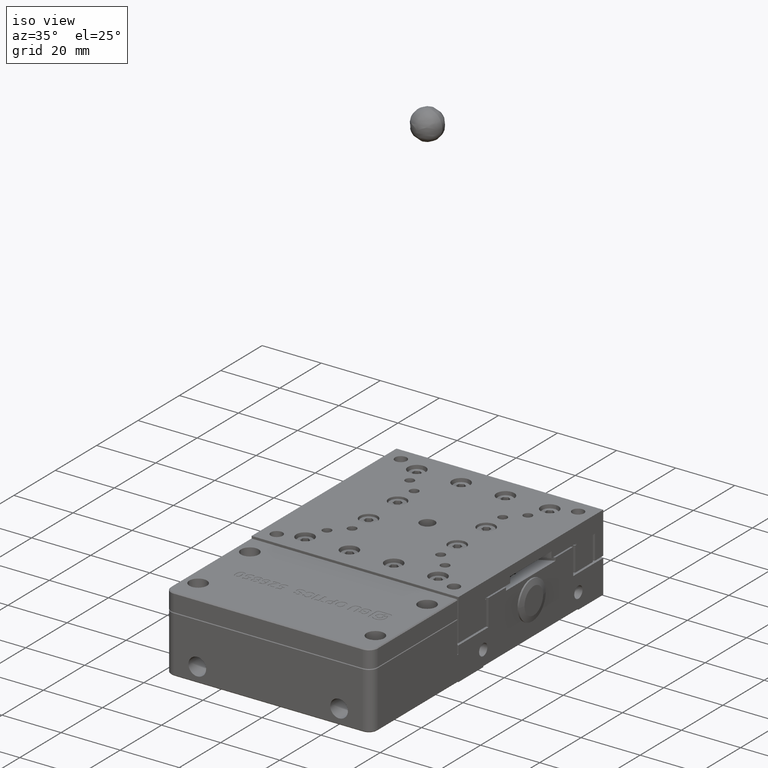
[diagram: clean part render]
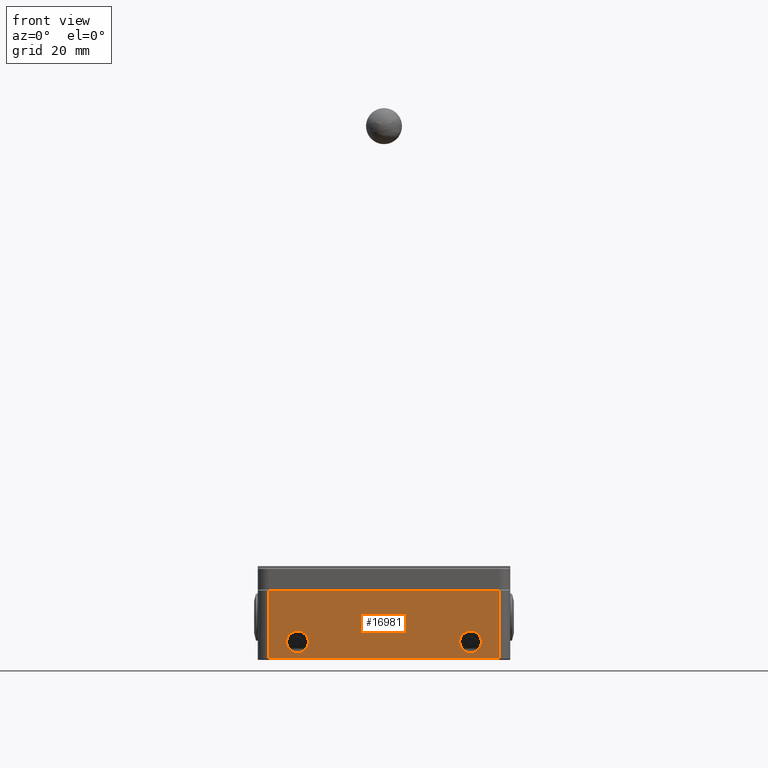
[diagram: tour spotlight — one face highlighted and labeled with its STEP entity id]
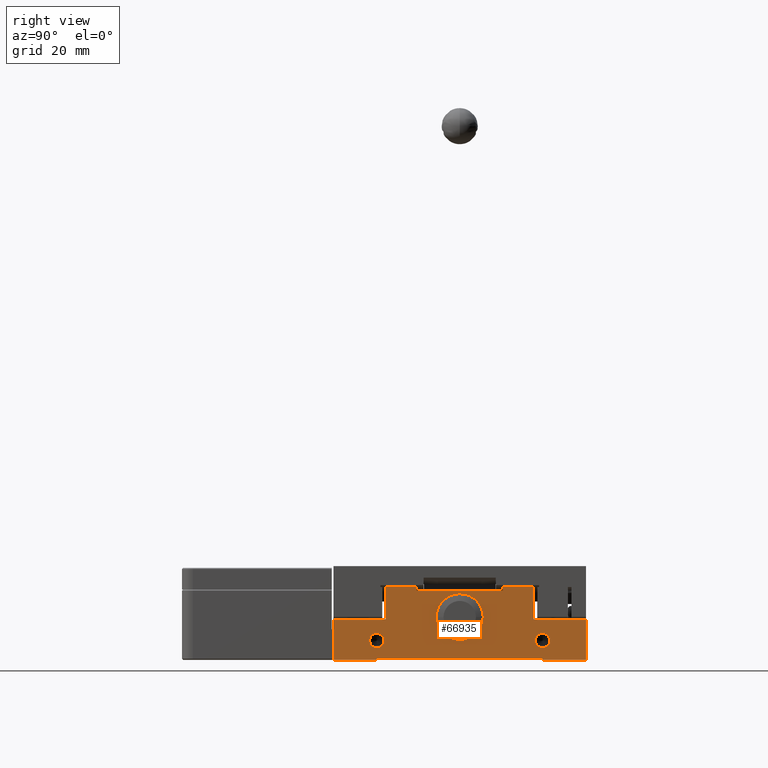
[diagram: tour spotlight — one face highlighted and labeled with its STEP entity id]
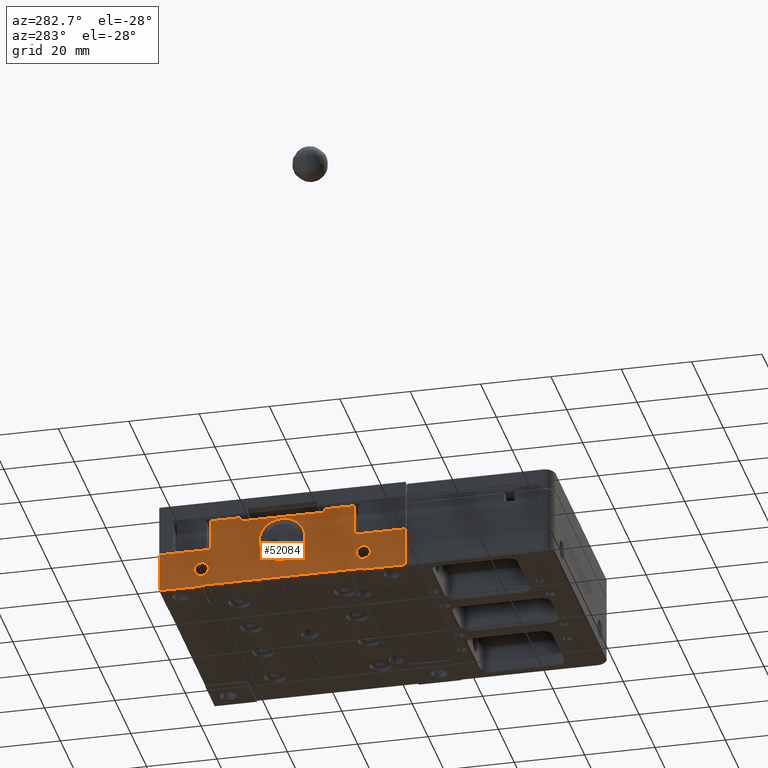
[diagram: tour spotlight — one face highlighted and labeled with its STEP entity id]
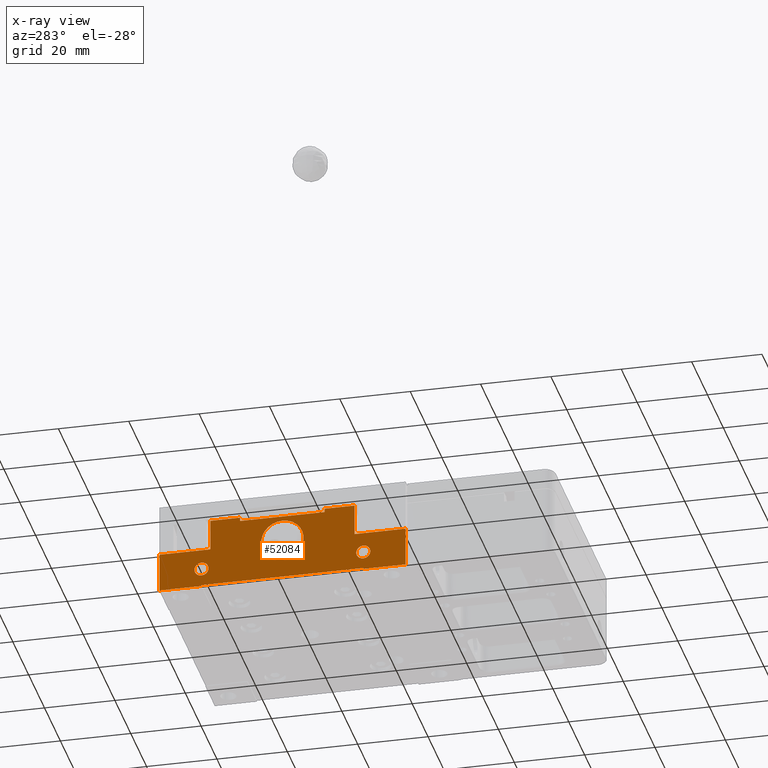
[diagram: x-ray of the same camera — body ghosted, this tour face saturated]
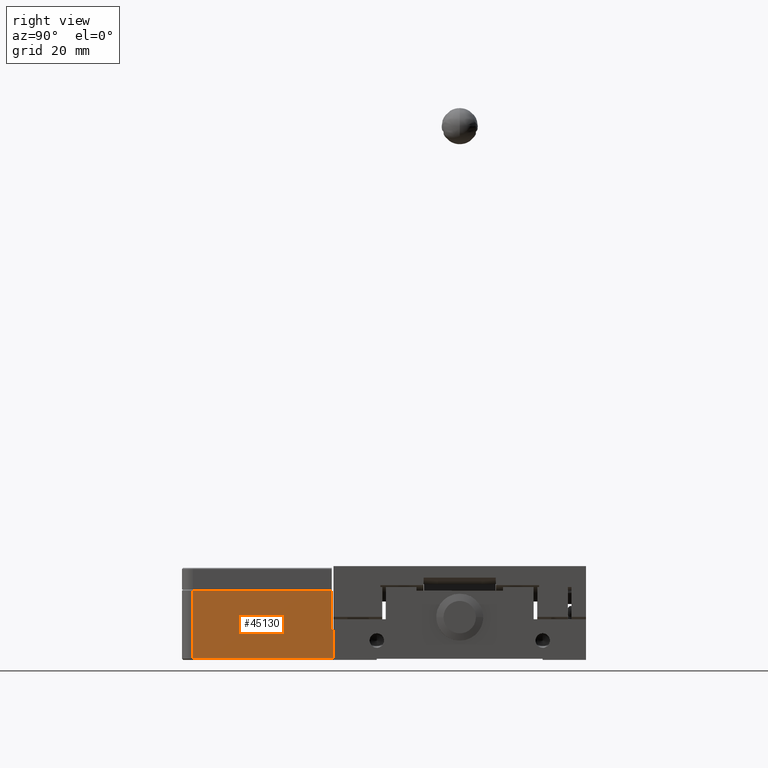
[diagram: tour spotlight — one face highlighted and labeled with its STEP entity id]
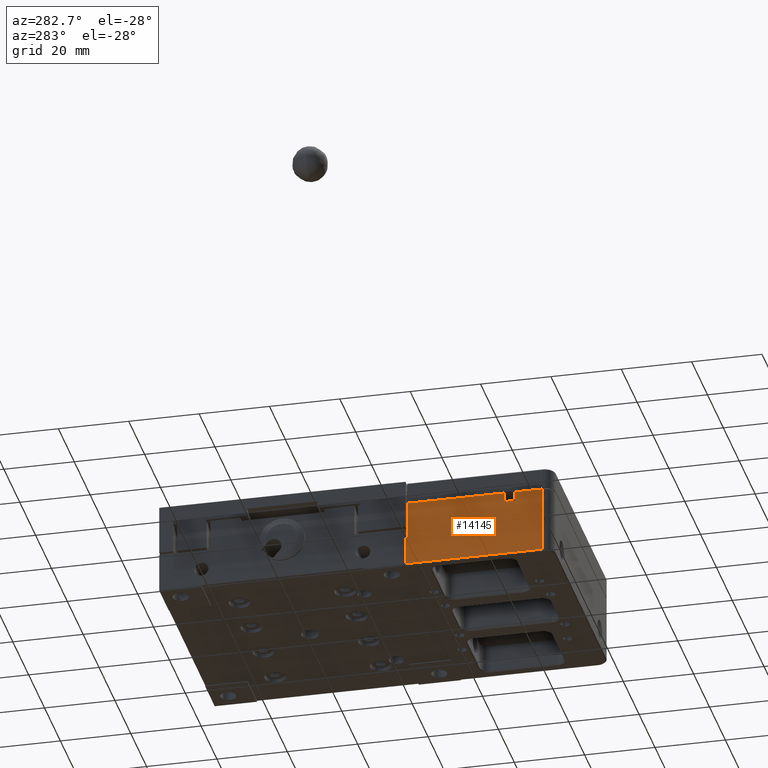
[diagram: tour spotlight — one face highlighted and labeled with its STEP entity id]
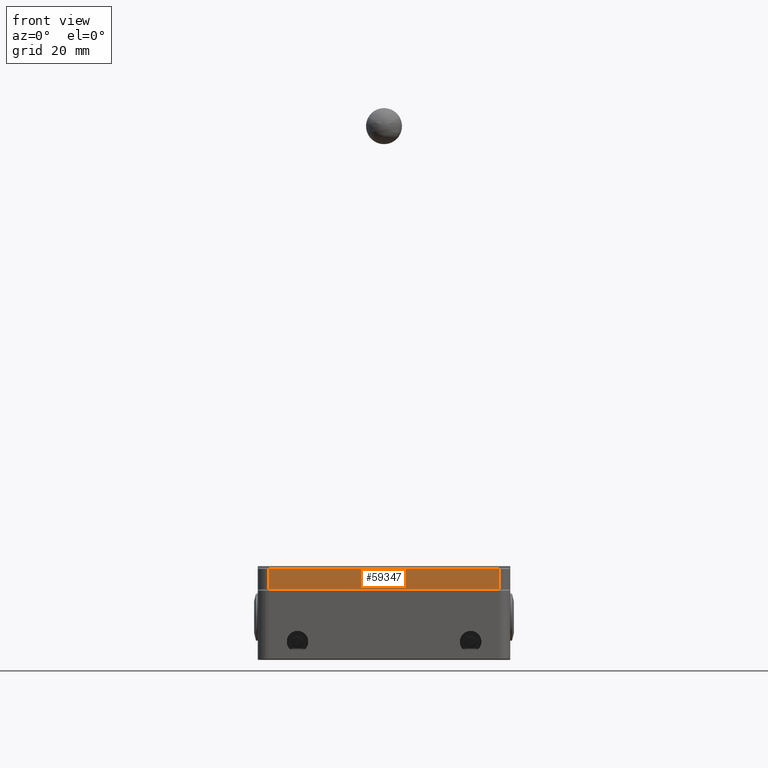
[diagram: tour spotlight — one face highlighted and labeled with its STEP entity id]
A machine part: a face-by-face anatomy tour. The part has 1740 B-rep faces; the first image is the clean iso view, then the 6 largest visible faces are spotlighted one at a time (largest first), each with its STEP entity span.

Face 1 — front view, entity #16981. In plain terms, the highlighted planar face has unit normal (0, -1, 0).
Definition (entity closure, byte-faithful):
#1458 = ORIENTED_EDGE ( 'NONE', *, *, #72483, .F. ) ;
#1739 = CARTESIAN_POINT ( 'NONE',  ( 24.78524365307783800, -76.99999999999998600, 7.921918030004945000 ) ) ;
#1905 = B_SPLINE_CURVE_WITH_KNOTS ( 'NONE', 3,
 ( #27427, #20845, #33993, #79692 ),
 .UNSPECIFIED., .F., .F.,
 ( 4, 4 ),
 ( 0.0000000000000000000, 1.000000000000000000 ),
 .UNSPECIFIED. ) ;
#2990 = ORIENTED_EDGE ( 'NONE', *, *, #52719, .F. ) ;
#3249 = B_SPLINE_CURVE_WITH_KNOTS ( 'NONE', 3,
 ( #37350, #76735, #18465, #64153, #25025, #70730, #31620, #77292, #38180, #83840, #44765, #5556, #51293, #12145, #57870, #18729, #64425, #25308 ),
 .UNSPECIFIED., .F., .F.,
 ( 4, 2, 2, 2, 2, 2, 2, 2, 4 ),
 ( 0.0000000000000000000, 0.1250000000000000600, 0.2500000000000000000, 0.3749999999999999400, 0.4999999999999998900, 0.6249999999999997800, 0.7499999999999998900, 0.8749999999999998900, 1.000000000000000000 ),
 .UNSPECIFIED. ) ;
#3871 = CARTESIAN_POINT ( 'NONE',  ( 21.37864083493722600, -76.99999999999997200, 6.510856941112697500 ) ) ;
#5298 = FACE_BOUND ( 'NONE', #11533, .T. ) ;
#5556 = CARTESIAN_POINT ( 'NONE',  ( -26.62135916506277400, -77.00000000000000000, 3.489143058887301100 ) ) ;
#5594 = CARTESIAN_POINT ( 'NONE',  ( -23.60730091830128100, -77.00000000000002800, 2.000000000000000400 ) ) ;
#5873 = CARTESIAN_POINT ( 'NONE',  ( -22.48914305888729700, -77.00000000000000000, 7.621359165062774100 ) ) ;
#6251 = EDGE_CURVE ( 'NONE', #72823, #79894, #1905, .T. ) ;
#8034 = CARTESIAN_POINT ( 'NONE',  ( 25.84364015992474600, -77.00000000000000000, 2.600999472805459500 ) ) ;
#8307 = CARTESIAN_POINT ( 'NONE',  ( 24.00000000000000000, -76.99999999999998600, 8.000000000000000000 ) ) ;
#10428 = CARTESIAN_POINT ( 'NONE',  ( 20.99999999999999600, -77.00000000000001400, 5.392699081698725500 ) ) ;
#11533 = EDGE_LOOP ( 'NONE', ( #48651, #1458 ) ) ;
#12103 = LINE ( 'NONE', #34346, #79632 ) ;
#12145 = CARTESIAN_POINT ( 'NONE',  ( -25.84364015992475300, -77.00000000000001400, 2.600999472805460400 ) ) ;
#12177 = CARTESIAN_POINT ( 'NONE',  ( -22.48914305888730400, -77.00000000000001400, 2.378640834937225400 ) ) ;
#12337 = CARTESIAN_POINT ( 'NONE',  ( -33.28000000000000100, -77.00000000000000000, -0.07799999999980000700 ) ) ;
#12460 = CARTESIAN_POINT ( 'NONE',  ( -23.60730091830127700, -77.00000000000000000, 8.000000000000001800 ) ) ;
#14393 = CARTESIAN_POINT ( 'NONE',  ( 24.00000000000000000, -77.00000000000000000, 2.000000000000000000 ) ) ;
#14633 = CARTESIAN_POINT ( 'NONE',  ( 26.62135916506277800, -77.00000000000000000, 3.489143058887302000 ) ) ;
#16753 = CARTESIAN_POINT ( 'NONE',  ( 23.60730091830128100, -77.00000000000002800, 8.000000000000001800 ) ) ;
#16981 = ADVANCED_FACE ( 'NONE', ( #22738, #5298, #40132 ), #64365, .T. ) ;
#17047 = CARTESIAN_POINT ( 'NONE',  ( 21.07808196999505800, -77.00000000000000000, 4.214756346922158900 ) ) ;
#17372 = CARTESIAN_POINT ( 'NONE',  ( 10.66666665046333400, -77.00000000000000000, 0.2999999981578302900 ) ) ;
#17606 = CARTESIAN_POINT ( 'NONE',  ( -31.99999996872603000, -77.00002426975460400, 0.2999912254139910900 ) ) ;
#18389 = ORIENTED_EDGE ( 'NONE', *, *, #18434, .T. ) ;
#18434 = EDGE_CURVE ( 'NONE', #52781, #42672, #84025, .T. ) ;
#18465 = CARTESIAN_POINT ( 'NONE',  ( -24.78524365307783100, -77.00000000000000000, 7.921918030004948500 ) ) ;
#18729 = CARTESIAN_POINT ( 'NONE',  ( -24.78524365307784200, -77.00000000000001400, 2.078081969995053700 ) ) ;
#18768 = CARTESIAN_POINT ( 'NONE',  ( -21.60099947280546900, -77.00000000000001400, 3.156359840075256600 ) ) ;
#18942 = DIRECTION ( 'NONE',  ( 1.000000000000000000, 0.0000000000000000000, 0.0000000000000000000 ) ) ;
#20845 = CARTESIAN_POINT ( 'NONE',  ( -10.66666663628166800, -76.99999433331500100, 19.20000566668499100 ) ) ;
#21240 = CARTESIAN_POINT ( 'NONE',  ( 27.00000000000000000, -77.00000000000000000, 4.607300918301276300 ) ) ;
#22738 = FACE_BOUND ( 'NONE', #30041, .T. ) ;
#23625 = CARTESIAN_POINT ( 'NONE',  ( 21.60099947280545500, -76.99999999999998600, 3.156359840075256200 ) ) ;
#23687 = CARTESIAN_POINT ( 'NONE',  ( -31.99999996872603000, -77.00002426975460400, 0.2999912254139910900 ) ) ;
#25025 = CARTESIAN_POINT ( 'NONE',  ( -25.84364015992473900, -76.99999999999997200, 7.399000527194538700 ) ) ;
#25308 = CARTESIAN_POINT ( 'NONE',  ( -24.00000000000000000, -77.00000000000000000, 2.000000000000000000 ) ) ;
#25337 = CARTESIAN_POINT ( 'NONE',  ( -21.07808196999506100, -77.00000000000001400, 4.214756346922162500 ) ) ;
#25409 = EDGE_CURVE ( 'NONE', #83850, #31820, #83984, .T. ) ;
#25439 = B_SPLINE_CURVE_WITH_KNOTS ( 'NONE', 3,
 ( #51341, #5594, #83617, #12177, #57913, #18768, #64469, #25337, #71050, #31934, #77608, #38504, #84161, #45061, #5873, #51607, #12460, #58186 ),
 .UNSPECIFIED., .F., .F.,
 ( 4, 2, 2, 2, 2, 2, 2, 2, 4 ),
 ( 0.0000000000000000000, 0.1249999999999998900, 0.2499999999999997800, 0.3749999999999996700, 0.4999999999999995600, 0.6249999999999996700, 0.7499999999999997800, 0.8749999999999998900, 1.000000000000000000 ),
 .UNSPECIFIED. ) ;
#26190 = EDGE_CURVE ( 'NONE', #70717, #69157, #25439, .T. ) ;
#27427 = CARTESIAN_POINT ( 'NONE',  ( -31.99999996856973900, -77.00002426978812800, 19.20000877454923900 ) ) ;
#27800 = CARTESIAN_POINT ( 'NONE',  ( 26.92191803000494600, -76.99999999999998600, 5.785243653077840200 ) ) ;
#30041 = EDGE_LOOP ( 'NONE', ( #40599, #2990 ) ) ;
#30202 = CARTESIAN_POINT ( 'NONE',  ( 22.48914305888730100, -77.00000000000000000, 2.378640834937228100 ) ) ;
#31168 = CARTESIAN_POINT ( 'NONE',  ( -32.00000000000000000, -77.00000000000000000, 9.749999999997724500 ) ) ;
#31620 = CARTESIAN_POINT ( 'NONE',  ( -26.62135916506277100, -76.99999999999997200, 6.510856941112697500 ) ) ;
#31820 = VERTEX_POINT ( 'NONE', #39242 ) ;
#31934 = CARTESIAN_POINT ( 'NONE',  ( -20.99999999999999300, -77.00000000000000000, 5.392699081698723700 ) ) ;
#32293 = EDGE_CURVE ( 'NONE', #72823, #52781, #56104, .T. ) ;
#33993 = CARTESIAN_POINT ( 'NONE',  ( 10.66666666666666800, -76.99999433331500100, 19.20000566668499100 ) ) ;
#34090 = CARTESIAN_POINT ( 'NONE',  ( 24.78524365307784200, -77.00000000000000000, 2.078081969995053200 ) ) ;
#34346 = CARTESIAN_POINT ( 'NONE',  ( 32.00000000000000000, -77.00000000000000000, 9.749999999997724500 ) ) ;
#34369 = CARTESIAN_POINT ( 'NONE',  ( 26.39900052719454100, -77.00000000000000000, 6.843640159924746100 ) ) ;
#36498 = CARTESIAN_POINT ( 'NONE',  ( 22.48914305888730100, -77.00000000000000000, 7.621359165062773200 ) ) ;
#36781 = CARTESIAN_POINT ( 'NONE',  ( 23.60730091830128100, -77.00000000000000000, 2.000000000000000000 ) ) ;
#37350 = CARTESIAN_POINT ( 'NONE',  ( -24.00000000000000000, -76.99999999999998600, 8.000000000000000000 ) ) ;
#38180 = CARTESIAN_POINT ( 'NONE',  ( -27.00000000000000400, -77.00000000000001400, 5.392699081698725500 ) ) ;
#38504 = CARTESIAN_POINT ( 'NONE',  ( -21.37864083493722600, -76.99999999999998600, 6.510856941112697500 ) ) ;
#38735 = VECTOR ( 'NONE', #70241, 1000.000000000000000 ) ;
#39242 = CARTESIAN_POINT ( 'NONE',  ( 24.00000000000000000, -76.99999999999998600, 8.000000000000000000 ) ) ;
#40132 = FACE_OUTER_BOUND ( 'NONE', #51033, .T. ) ;
#40599 = ORIENTED_EDGE ( 'NONE', *, *, #25409, .F. ) ;
#40685 = CARTESIAN_POINT ( 'NONE',  ( 24.00000000000000000, -77.00000000000000000, 2.000000000000000000 ) ) ;
#40941 = CARTESIAN_POINT ( 'NONE',  ( 25.51085694111270600, -77.00000000000000000, 7.621359165062774100 ) ) ;
#41424 = EDGE_CURVE ( 'NONE', #42672, #79894, #12103, .T. ) ;
#42672 = VERTEX_POINT ( 'NONE', #82902 ) ;
#42821 = ORIENTED_EDGE ( 'NONE', *, *, #32293, .T. ) ;
#43035 = CARTESIAN_POINT ( 'NONE',  ( 21.60099947280545900, -76.99999999999998600, 6.843640159924743400 ) ) ;
#44765 = CARTESIAN_POINT ( 'NONE',  ( -26.92191803000494600, -77.00000000000000000, 4.214756346922158900 ) ) ;
#45061 = CARTESIAN_POINT ( 'NONE',  ( -22.15635984007526100, -76.99999999999998600, 7.399000527194538700 ) ) ;
#47215 = CARTESIAN_POINT ( 'NONE',  ( 25.51085694111270300, -77.00000000000001400, 2.378640834937225400 ) ) ;
#47488 = CARTESIAN_POINT ( 'NONE',  ( 24.39269908169872300, -77.00000000000000000, 8.000000000000001800 ) ) ;
#48651 = ORIENTED_EDGE ( 'NONE', *, *, #26190, .F. ) ;
#49574 = CARTESIAN_POINT ( 'NONE',  ( 21.07808196999505100, -77.00000000000000000, 5.785243653077841900 ) ) ;
#50653 = CARTESIAN_POINT ( 'NONE',  ( -31.99999996856973900, -77.00002426978812800, 19.20000877454923900 ) ) ;
#51033 = EDGE_LOOP ( 'NONE', ( #18389, #58800, #52197, #42821 ) ) ;
#51089 = AXIS2_PLACEMENT_3D ( 'NONE', #12337, #58088, #18942 ) ;
#51293 = CARTESIAN_POINT ( 'NONE',  ( -26.39900052719453400, -76.99999999999998600, 3.156359840075256200 ) ) ;
#51341 = CARTESIAN_POINT ( 'NONE',  ( -24.00000000000000000, -77.00000000000000000, 2.000000000000000000 ) ) ;
#51607 = CARTESIAN_POINT ( 'NONE',  ( -23.21475634692215800, -76.99999999999998600, 7.921918030004945000 ) ) ;
#52197 = ORIENTED_EDGE ( 'NONE', *, *, #6251, .F. ) ;
#52719 = EDGE_CURVE ( 'NONE', #31820, #83850, #72008, .T. ) ;
#52781 = VERTEX_POINT ( 'NONE', #17606 ) ;
#53792 = CARTESIAN_POINT ( 'NONE',  ( 26.39900052719454100, -77.00000000000001400, 3.156359840075256600 ) ) ;
#56104 = LINE ( 'NONE', #31168, #38735 ) ;
#56188 = CARTESIAN_POINT ( 'NONE',  ( 21.00000000000000400, -77.00000000000002800, 4.607300918301277200 ) ) ;
#57870 = CARTESIAN_POINT ( 'NONE',  ( -25.51085694111270600, -77.00000000000000000, 2.378640834937228100 ) ) ;
#57913 = CARTESIAN_POINT ( 'NONE',  ( -22.15635984007525700, -77.00000000000000000, 2.600999472805459500 ) ) ;
#58088 = DIRECTION ( 'NONE',  ( 0.0000000000000000000, -1.000000000000000000, 0.0000000000000000000 ) ) ;
#58186 = CARTESIAN_POINT ( 'NONE',  ( -24.00000000000000000, -76.99999999999998600, 8.000000000000000000 ) ) ;
#58800 = ORIENTED_EDGE ( 'NONE', *, *, #41424, .T. ) ;
#60022 = CARTESIAN_POINT ( 'NONE',  ( -24.00000000000000000, -77.00000000000000000, 2.000000000000000000 ) ) ;
#60341 = CARTESIAN_POINT ( 'NONE',  ( 26.92191803000494900, -77.00000000000001400, 4.214756346922162500 ) ) ;
#62462 = CARTESIAN_POINT ( 'NONE',  ( 24.00000000000000000, -76.99999999999998600, 8.000000000000000000 ) ) ;
#62752 = CARTESIAN_POINT ( 'NONE',  ( 21.37864083493722900, -77.00000000000000000, 3.489143058887301100 ) ) ;
#63087 = CARTESIAN_POINT ( 'NONE',  ( 31.99999998810951900, -77.00002507356438700, 0.2999875730801920800 ) ) ;
#63859 = CARTESIAN_POINT ( 'NONE',  ( 31.99999997202927900, -77.00002507356214200, 19.20001242691955000 ) ) ;
#64153 = CARTESIAN_POINT ( 'NONE',  ( -25.51085694111269600, -77.00000000000000000, 7.621359165062773200 ) ) ;
#64365 = PLANE ( 'NONE',  #51089 ) ;
#64425 = CARTESIAN_POINT ( 'NONE',  ( -24.39269908169872600, -77.00000000000000000, 2.000000000000000000 ) ) ;
#64469 = CARTESIAN_POINT ( 'NONE',  ( -21.37864083493722900, -77.00000000000000000, 3.489143058887302000 ) ) ;
#66588 = DIRECTION ( 'NONE',  ( 0.0000000000000000000, 0.0000000000000000000, 1.000000000000000000 ) ) ;
#66890 = CARTESIAN_POINT ( 'NONE',  ( 26.99999999999999600, -77.00000000000000000, 5.392699081698723700 ) ) ;
#69157 = VERTEX_POINT ( 'NONE', #78450 ) ;
#69265 = CARTESIAN_POINT ( 'NONE',  ( 22.15635984007526100, -77.00000000000001400, 2.600999472805460400 ) ) ;
#70241 = DIRECTION ( 'NONE',  ( 0.0000000000000000000, 0.0000000000000000000, -1.000000000000000000 ) ) ;
#70717 = VERTEX_POINT ( 'NONE', #60022 ) ;
#70730 = CARTESIAN_POINT ( 'NONE',  ( -26.39900052719453400, -76.99999999999998600, 6.843640159924743400 ) ) ;
#71050 = CARTESIAN_POINT ( 'NONE',  ( -20.99999999999999600, -77.00000000000000000, 4.607300918301276300 ) ) ;
#72008 = B_SPLINE_CURVE_WITH_KNOTS ( 'NONE', 3,
 ( #62462, #16753, #75587, #36498, #82166, #43035, #3871, #49574, #10428, #56188, #17047, #62752, #23625, #69265, #30202, #75861, #36781, #82442 ),
 .UNSPECIFIED., .F., .F.,
 ( 4, 2, 2, 2, 2, 2, 2, 2, 4 ),
 ( 0.0000000000000000000, 0.1250000000000000600, 0.2500000000000000000, 0.3749999999999999400, 0.4999999999999998900, 0.6249999999999997800, 0.7499999999999998900, 0.8749999999999998900, 1.000000000000000000 ),
 .UNSPECIFIED. ) ;
#72483 = EDGE_CURVE ( 'NONE', #69157, #70717, #3249, .T. ) ;
#72823 = VERTEX_POINT ( 'NONE', #50653 ) ;
#73488 = CARTESIAN_POINT ( 'NONE',  ( 26.62135916506277100, -76.99999999999998600, 6.510856941112697500 ) ) ;
#75587 = CARTESIAN_POINT ( 'NONE',  ( 23.21475634692215800, -77.00000000000000000, 7.921918030004948500 ) ) ;
#75861 = CARTESIAN_POINT ( 'NONE',  ( 23.21475634692216200, -77.00000000000001400, 2.078081969995053700 ) ) ;
#76735 = CARTESIAN_POINT ( 'NONE',  ( -24.39269908169873700, -77.00000000000002800, 8.000000000000001800 ) ) ;
#77292 = CARTESIAN_POINT ( 'NONE',  ( -26.92191803000494200, -77.00000000000000000, 5.785243653077841900 ) ) ;
#77608 = CARTESIAN_POINT ( 'NONE',  ( -21.07808196999505800, -76.99999999999998600, 5.785243653077840200 ) ) ;
#78450 = CARTESIAN_POINT ( 'NONE',  ( -24.00000000000000000, -76.99999999999998600, 8.000000000000000000 ) ) ;
#79632 = VECTOR ( 'NONE', #66588, 1000.000000000000000 ) ;
#79692 = CARTESIAN_POINT ( 'NONE',  ( 31.99999997202927900, -77.00002507356214200, 19.20001242691955000 ) ) ;
#79781 = CARTESIAN_POINT ( 'NONE',  ( 24.39269908169873000, -77.00000000000002800, 2.000000000000000400 ) ) ;
#79894 = VERTEX_POINT ( 'NONE', #63859 ) ;
#80061 = CARTESIAN_POINT ( 'NONE',  ( 25.84364015992473900, -76.99999999999998600, 7.399000527194538700 ) ) ;
#82166 = CARTESIAN_POINT ( 'NONE',  ( 22.15635984007525000, -76.99999999999997200, 7.399000527194538700 ) ) ;
#82216 = CARTESIAN_POINT ( 'NONE',  ( -10.66666663830333800, -77.00000000000000000, 0.2999999981578302900 ) ) ;
#82442 = CARTESIAN_POINT ( 'NONE',  ( 24.00000000000000000, -77.00000000000000000, 2.000000000000000000 ) ) ;
#82902 = CARTESIAN_POINT ( 'NONE',  ( 31.99999998810951900, -77.00002507356438700, 0.2999875730801920800 ) ) ;
#83617 = CARTESIAN_POINT ( 'NONE',  ( -23.21475634692216200, -77.00000000000000000, 2.078081969995053200 ) ) ;
#83840 = CARTESIAN_POINT ( 'NONE',  ( -27.00000000000000400, -77.00000000000002800, 4.607300918301277200 ) ) ;
#83850 = VERTEX_POINT ( 'NONE', #14393 ) ;
#83984 = B_SPLINE_CURVE_WITH_KNOTS ( 'NONE', 3,
 ( #40685, #79781, #34090, #47215, #8034, #53792, #14633, #60341, #21240, #66890, #27800, #73488, #34369, #80061, #40941, #1739, #47488, #8307 ),
 .UNSPECIFIED., .F., .F.,
 ( 4, 2, 2, 2, 2, 2, 2, 2, 4 ),
 ( 0.0000000000000000000, 0.1249999999999998900, 0.2499999999999997800, 0.3749999999999996700, 0.4999999999999995600, 0.6249999999999996700, 0.7499999999999997800, 0.8749999999999998900, 1.000000000000000000 ),
 .UNSPECIFIED. ) ;
#84025 = B_SPLINE_CURVE_WITH_KNOTS ( 'NONE', 3,
 ( #23687, #82216, #17372, #63087 ),
 .UNSPECIFIED., .F., .F.,
 ( 4, 4 ),
 ( 0.0000000000000000000, 1.000000000000000000 ),
 .UNSPECIFIED. ) ;
#84161 = CARTESIAN_POINT ( 'NONE',  ( -21.60099947280546200, -77.00000000000000000, 6.843640159924746100 ) ) ;

Face 2 — right view, entity #66935. In plain terms, the highlighted planar face has unit normal (1, 0, 0).
Definition (entity closure, byte-faithful):
#435 = VERTEX_POINT ( 'NONE', #46222 ) ;
#461 = VECTOR ( 'NONE', #74280, 1000.000000000000000 ) ;
#522 = ORIENTED_EDGE ( 'NONE', *, *, #69795, .F. ) ;
#535 = ORIENTED_EDGE ( 'NONE', *, *, #15250, .F. ) ;
#901 = EDGE_CURVE ( 'NONE', #16228, #60025, #49313, .T. ) ;
#1362 = VECTOR ( 'NONE', #37925, 1000.000000000000000 ) ;
#1517 = CARTESIAN_POINT ( 'NONE',  ( 35.00000000000000000, -12.00000000000000000, 14.33237061975000200 ) ) ;
#1535 = ORIENTED_EDGE ( 'NONE', *, *, #56837, .F. ) ;
#1666 = CARTESIAN_POINT ( 'NONE',  ( 35.00000000000000000, 11.99999999999999800, 20.20622065641532200 ) ) ;
#1913 = CARTESIAN_POINT ( 'NONE',  ( 35.00000000000000000, 23.00000000000000000, 0.3000000000000008200 ) ) ;
#2051 = CARTESIAN_POINT ( 'NONE',  ( 35.00000000000000000, 35.00000000000000000, 11.25000000000000000 ) ) ;
#2286 = CIRCLE ( 'NONE', #72268, 1.999999999999998200 ) ;
#2590 = LINE ( 'NONE', #1517, #70091 ) ;
#2623 = CARTESIAN_POINT ( 'NONE',  ( 35.00000000000000000, -35.00000000000000000, 11.25000000000000000 ) ) ;
#3510 = VERTEX_POINT ( 'NONE', #1666 ) ;
#3801 = CARTESIAN_POINT ( 'NONE',  ( 35.00000000000000000, 23.00000000000000000, 5.349999999999992500 ) ) ;
#3842 = ORIENTED_EDGE ( 'NONE', *, *, #74961, .F. ) ;
#5877 = EDGE_CURVE ( 'NONE', #67215, #28344, #82291, .T. ) ;
#6601 = CARTESIAN_POINT ( 'NONE',  ( 35.00000000000000000, 23.00000000000000000, 7.349999999999990800 ) ) ;
#7598 = DIRECTION ( 'NONE',  ( -0.0000000000000000000, -0.0000000000000000000, 1.000000000000000000 ) ) ;
#7607 = ORIENTED_EDGE ( 'NONE', *, *, #56795, .F. ) ;
#8284 = CARTESIAN_POINT ( 'NONE',  ( 35.00000000000000000, 23.00000000000000000, 0.4676381629686999800 ) ) ;
#8348 = ORIENTED_EDGE ( 'NONE', *, *, #16277, .T. ) ;
#8555 = CIRCLE ( 'NONE', #82211, 6.000000000000000000 ) ;
#8640 = FACE_BOUND ( 'NONE', #64498, .T. ) ;
#8710 = CARTESIAN_POINT ( 'NONE',  ( 35.00000000000000000, 23.00000000000000000, 0.0000000000000000000 ) ) ;
#9595 = CARTESIAN_POINT ( 'NONE',  ( 35.00000000000000000, -12.00000000000000000, 19.16968528034747300 ) ) ;
#9889 = CARTESIAN_POINT ( 'NONE',  ( 35.00000000000000000, 11.99999999999999600, 20.61034522485000400 ) ) ;
#10354 = CARTESIAN_POINT ( 'NONE',  ( 35.00000000000000000, 23.00000000000000000, 5.349999999999992500 ) ) ;
#10363 = DIRECTION ( 'NONE',  ( 0.0000000000000000000, 0.0000000000000000000, -1.000000000000000000 ) ) ;
#11567 = CARTESIAN_POINT ( 'NONE',  ( 35.00000000000000000, -23.00000000000000000, 3.350000000000008500 ) ) ;
#12147 = VERTEX_POINT ( 'NONE', #1913 ) ;
#12918 = CARTESIAN_POINT ( 'NONE',  ( 35.00000000000000000, 36.39999999999999900, 0.3000000000000016500 ) ) ;
#12993 = VERTEX_POINT ( 'NONE', #58944 ) ;
#13081 = CARTESIAN_POINT ( 'NONE',  ( 35.00000000000000000, -35.00000000000000000, 11.47500000000000000 ) ) ;
#13295 = EDGE_CURVE ( 'NONE', #59767, #69348, #72497, .T. ) ;
#14183 = CARTESIAN_POINT ( 'NONE',  ( 35.00000000000000000, 11.99999999999999800, 19.16968528034747300 ) ) ;
#14909 = DIRECTION ( 'NONE',  ( 1.000000000000000000, 0.0000000000000000000, 8.673617379884040400E-016 ) ) ;
#15250 = EDGE_CURVE ( 'NONE', #31828, #12993, #35066, .T. ) ;
#15262 = EDGE_CURVE ( 'NONE', #81727, #40187, #2286, .T. ) ;
#15398 = DIRECTION ( 'NONE',  ( 0.0000000000000000000, -1.000000000000000000, 0.0000000000000000000 ) ) ;
#15931 = DIRECTION ( 'NONE',  ( 0.0000000000000000000, -1.000000000000000000, 0.0000000000000000000 ) ) ;
#16228 = VERTEX_POINT ( 'NONE', #54804 ) ;
#16277 = EDGE_CURVE ( 'NONE', #3510, #16611, #55665, .T. ) ;
#16611 = VERTEX_POINT ( 'NONE', #14183 ) ;
#16666 = EDGE_CURVE ( 'NONE', #69348, #54788, #65755, .T. ) ;
#16963 = DIRECTION ( 'NONE',  ( 0.0000000000000000000, 0.0000000000000000000, -1.000000000000000000 ) ) ;
#17886 = EDGE_LOOP ( 'NONE', ( #30867, #82480, #49589, #58777, #48538, #58222, #66708, #61830, #31426, #47812, #8348, #81512, #56708, #73706, #73230, #7607 ) ) ;
#18068 = EDGE_CURVE ( 'NONE', #61803, #44149, #74414, .T. ) ;
#20090 = VECTOR ( 'NONE', #52217, 1000.000000000000000 ) ;
#20361 = VECTOR ( 'NONE', #15931, 1000.000000000000000 ) ;
#24386 = VECTOR ( 'NONE', #39230, 1000.000000000000000 ) ;
#24899 = CARTESIAN_POINT ( 'NONE',  ( 35.00000000000000000, -23.00000000000316900, 6.234162491785455000E-016 ) ) ;
#25280 = CARTESIAN_POINT ( 'NONE',  ( 35.00000000000000000, 36.39999999999999900, 20.61034522485000400 ) ) ;
#25967 = LINE ( 'NONE', #56220, #56636 ) ;
#26288 = DIRECTION ( 'NONE',  ( -0.0000000000000000000, -1.000000000000000000, -0.0000000000000000000 ) ) ;
#26582 = CARTESIAN_POINT ( 'NONE',  ( 35.00000000000000000, 22.75999999999999800, 0.0000000000000000000 ) ) ;
#26794 = CARTESIAN_POINT ( 'NONE',  ( 35.00000000000000000, 35.00000000000000000, 20.61034522485000400 ) ) ;
#26858 = AXIS2_PLACEMENT_3D ( 'NONE', #3801, #49514, #10363 ) ;
#28344 = VERTEX_POINT ( 'NONE', #38695 ) ;
#28567 = CARTESIAN_POINT ( 'NONE',  ( 35.00000000000000000, 36.39999999999999900, 19.16968531875737400 ) ) ;
#28654 = EDGE_LOOP ( 'NONE', ( #3842, #535 ) ) ;
#29061 = EDGE_CURVE ( 'NONE', #16611, #32679, #50107, .T. ) ;
#29357 = DIRECTION ( 'NONE',  ( -0.0000000000000000000, 1.000000000000000000, -0.0000000000000000000 ) ) ;
#29931 = CARTESIAN_POINT ( 'NONE',  ( 35.00000000000000000, 0.0000000000000000000, 11.85000000000000100 ) ) ;
#30052 = VERTEX_POINT ( 'NONE', #2623 ) ;
#30122 = CARTESIAN_POINT ( 'NONE',  ( 35.00000000000000000, -23.00000000000000000, 5.350000000000006800 ) ) ;
#30867 = ORIENTED_EDGE ( 'NONE', *, *, #60473, .F. ) ;
#31426 = ORIENTED_EDGE ( 'NONE', *, *, #16666, .T. ) ;
#31828 = VERTEX_POINT ( 'NONE', #6601 ) ;
#31871 = DIRECTION ( 'NONE',  ( 0.0000000000000000000, -1.000000000000000000, 0.0000000000000000000 ) ) ;
#31986 = DIRECTION ( 'NONE',  ( -0.0000000000000000000, -1.589544494984717100E-007, -0.9999999999999873400 ) ) ;
#32528 = EDGE_LOOP ( 'NONE', ( #1535, #71321 ) ) ;
#32679 = VERTEX_POINT ( 'NONE', #9595 ) ;
#32764 = VECTOR ( 'NONE', #15398, 1000.000000000000000 ) ;
#33072 = EDGE_CURVE ( 'NONE', #45711, #32679, #2590, .T. ) ;
#33849 = EDGE_CURVE ( 'NONE', #435, #60546, #34081, .T. ) ;
#34081 = LINE ( 'NONE', #64537, #82072 ) ;
#35041 = ORIENTED_EDGE ( 'NONE', *, *, #15262, .F. ) ;
#35066 = CIRCLE ( 'NONE', #67848, 1.999999999999998200 ) ;
#35108 = CARTESIAN_POINT ( 'NONE',  ( 35.00000000000000000, 20.50000000000000400, 20.20622065641532200 ) ) ;
#35402 = CARTESIAN_POINT ( 'NONE',  ( 35.00000000000000000, -35.28999999999999900, 11.25000000000000000 ) ) ;
#35860 = CARTESIAN_POINT ( 'NONE',  ( 35.00000000000000000, 20.50000000000000000, 11.25000000000000000 ) ) ;
#36162 = CIRCLE ( 'NONE', #44876, 1.999999999999998200 ) ;
#36168 = LINE ( 'NONE', #77029, #1362 ) ;
#36528 = DIRECTION ( 'NONE',  ( 0.0000000000000000000, 0.0000000000000000000, 1.000000000000000000 ) ) ;
#36701 = DIRECTION ( 'NONE',  ( 0.0000000000000000000, 0.0000000000000000000, -1.000000000000000000 ) ) ;
#37925 = DIRECTION ( 'NONE',  ( 0.0000000000000000000, -1.000000000000000000, 0.0000000000000000000 ) ) ;
#38151 = PLANE ( 'NONE',  #67011 ) ;
#38288 = VECTOR ( 'NONE', #75298, 1000.000000000000000 ) ;
#38695 = CARTESIAN_POINT ( 'NONE',  ( 35.00000000000000000, 0.0000000000000000000, 17.85000000000000100 ) ) ;
#39054 = DIRECTION ( 'NONE',  ( 1.000000000000000000, -0.0000000000000000000, -0.0000000000000000000 ) ) ;
#39230 = DIRECTION ( 'NONE',  ( -0.0000000000000000000, 1.000000000000000000, -0.0000000000000000000 ) ) ;
#39728 = VECTOR ( 'NONE', #26288, 1000.000000000000000 ) ;
#40187 = VERTEX_POINT ( 'NONE', #11567 ) ;
#41318 = CARTESIAN_POINT ( 'NONE',  ( 35.00000000000000000, 20.50000000000000000, 20.61034522485000400 ) ) ;
#41968 = DIRECTION ( 'NONE',  ( 0.0000000000000000000, 1.000000000000000000, 0.0000000000000000000 ) ) ;
#43810 = LINE ( 'NONE', #12918, #24386 ) ;
#43996 = CARTESIAN_POINT ( 'NONE',  ( 35.00000000000000000, 35.00000000000000000, 0.0000000000000000000 ) ) ;
#44149 = VERTEX_POINT ( 'NONE', #8710 ) ;
#44755 = LINE ( 'NONE', #75038, #62130 ) ;
#44876 = AXIS2_PLACEMENT_3D ( 'NONE', #54053, #14909, #60627 ) ;
#45239 = VECTOR ( 'NONE', #31986, 1000.000000000000100 ) ;
#45711 = VERTEX_POINT ( 'NONE', #46237 ) ;
#46222 = CARTESIAN_POINT ( 'NONE',  ( 35.00000000000000000, -20.50000000000000000, 11.25000000000000000 ) ) ;
#46237 = CARTESIAN_POINT ( 'NONE',  ( 35.00000029284783000, -12.00000000000000000, 20.20622065641532200 ) ) ;
#47812 = ORIENTED_EDGE ( 'NONE', *, *, #56953, .T. ) ;
#48538 = ORIENTED_EDGE ( 'NONE', *, *, #79377, .F. ) ;
#48555 = CARTESIAN_POINT ( 'NONE',  ( 35.00000000000000000, -23.00000000000000000, 7.350000000000005000 ) ) ;
#48820 = EDGE_CURVE ( 'NONE', #61803, #59767, #82795, .T. ) ;
#49313 = LINE ( 'NONE', #64524, #45239 ) ;
#49514 = DIRECTION ( 'NONE',  ( 1.000000000000000000, 0.0000000000000000000, -8.673617379884042400E-016 ) ) ;
#49589 = ORIENTED_EDGE ( 'NONE', *, *, #901, .F. ) ;
#49709 = EDGE_CURVE ( 'NONE', #16228, #12147, #43810, .T. ) ;
#50107 = LINE ( 'NONE', #28567, #32764 ) ;
#50821 = AXIS2_PLACEMENT_3D ( 'NONE', #78156, #39054, #84707 ) ;
#51509 = CIRCLE ( 'NONE', #26858, 1.999999999999998200 ) ;
#52217 = DIRECTION ( 'NONE',  ( -0.0000000000000000000, -0.0000000000000000000, 1.000000000000000000 ) ) ;
#53547 = CARTESIAN_POINT ( 'NONE',  ( 35.00000000000000000, 7.347880794884119700E-016, 5.850000000000001400 ) ) ;
#53865 = DIRECTION ( 'NONE',  ( -0.0000000000000000000, -0.0000000000000000000, -1.000000000000000000 ) ) ;
#54053 = CARTESIAN_POINT ( 'NONE',  ( 35.00000000000000000, -23.00000000000000000, 5.350000000000006800 ) ) ;
#54788 = VERTEX_POINT ( 'NONE', #35108 ) ;
#54804 = CARTESIAN_POINT ( 'NONE',  ( 35.00000000000000000, -22.99999995231683100, 0.3000000000000009300 ) ) ;
#54857 = LINE ( 'NONE', #13081, #20090 ) ;
#55091 = CARTESIAN_POINT ( 'NONE',  ( 35.00000000000000000, 36.39999999999999900, 11.25000000000000000 ) ) ;
#55665 = LINE ( 'NONE', #9889, #38288 ) ;
#56124 = DIRECTION ( 'NONE',  ( 1.000000000000000000, 0.0000000000000000000, -8.673617379884042400E-016 ) ) ;
#56220 = CARTESIAN_POINT ( 'NONE',  ( 35.00000000000000000, -35.24000000000000200, 0.0000000000000000000 ) ) ;
#56636 = VECTOR ( 'NONE', #75889, 1000.000000000000000 ) ;
#56708 = ORIENTED_EDGE ( 'NONE', *, *, #33072, .F. ) ;
#56795 = EDGE_CURVE ( 'NONE', #30052, #435, #65901, .T. ) ;
#56837 = EDGE_CURVE ( 'NONE', #28344, #67215, #8555, .T. ) ;
#56862 = EDGE_CURVE ( 'NONE', #60025, #71875, #25967, .T. ) ;
#56953 = EDGE_CURVE ( 'NONE', #54788, #3510, #36168, .T. ) ;
#58222 = ORIENTED_EDGE ( 'NONE', *, *, #18068, .F. ) ;
#58746 = FACE_BOUND ( 'NONE', #28654, .T. ) ;
#58761 = LINE ( 'NONE', #8284, #461 ) ;
#58777 = ORIENTED_EDGE ( 'NONE', *, *, #49709, .T. ) ;
#58944 = CARTESIAN_POINT ( 'NONE',  ( 35.00000000000000000, 23.00000000000000000, 3.349999999999994300 ) ) ;
#59767 = VERTEX_POINT ( 'NONE', #2051 ) ;
#60025 = VERTEX_POINT ( 'NONE', #24899 ) ;
#60473 = EDGE_CURVE ( 'NONE', #71875, #30052, #54857, .T. ) ;
#60546 = VERTEX_POINT ( 'NONE', #66202 ) ;
#60627 = DIRECTION ( 'NONE',  ( 0.0000000000000000000, 0.0000000000000000000, -1.000000000000000000 ) ) ;
#61803 = VERTEX_POINT ( 'NONE', #43996 ) ;
#61830 = ORIENTED_EDGE ( 'NONE', *, *, #13295, .T. ) ;
#62130 = VECTOR ( 'NONE', #29357, 1000.000000000000000 ) ;
#64498 = EDGE_LOOP ( 'NONE', ( #522, #35041 ) ) ;
#64524 = CARTESIAN_POINT ( 'NONE',  ( 35.00000000000000000, -23.00000002665000000, -0.1676381629664000200 ) ) ;
#64537 = CARTESIAN_POINT ( 'NONE',  ( 35.00000000000000000, -20.50000000000000000, 20.47034508890000700 ) ) ;
#65755 = LINE ( 'NONE', #41318, #81075 ) ;
#65901 = LINE ( 'NONE', #35402, #73021 ) ;
#66202 = CARTESIAN_POINT ( 'NONE',  ( 35.00000029284783000, -20.50000000000000000, 20.20622065641532200 ) ) ;
#66708 = ORIENTED_EDGE ( 'NONE', *, *, #48820, .T. ) ;
#66935 = ADVANCED_FACE ( 'NONE', ( #76107, #8640, #58746, #84298 ), #38151, .T. ) ;
#67011 = AXIS2_PLACEMENT_3D ( 'NONE', #25280, #70982, #31871 ) ;
#67215 = VERTEX_POINT ( 'NONE', #53547 ) ;
#67455 = VECTOR ( 'NONE', #7598, 1000.000000000000000 ) ;
#67848 = AXIS2_PLACEMENT_3D ( 'NONE', #10354, #56124, #16963 ) ;
#69348 = VERTEX_POINT ( 'NONE', #35860 ) ;
#69795 = EDGE_CURVE ( 'NONE', #40187, #81727, #36162, .T. ) ;
#70091 = VECTOR ( 'NONE', #53865, 1000.000000000000000 ) ;
#70982 = DIRECTION ( 'NONE',  ( 1.000000000000000000, 0.0000000000000000000, 0.0000000000000000000 ) ) ;
#71321 = ORIENTED_EDGE ( 'NONE', *, *, #5877, .F. ) ;
#71875 = VERTEX_POINT ( 'NONE', #78959 ) ;
#72268 = AXIS2_PLACEMENT_3D ( 'NONE', #30122, #75789, #36701 ) ;
#72356 = EDGE_CURVE ( 'NONE', #60546, #45711, #44755, .T. ) ;
#72497 = LINE ( 'NONE', #55091, #20361 ) ;
#73021 = VECTOR ( 'NONE', #41968, 1000.000000000000000 ) ;
#73230 = ORIENTED_EDGE ( 'NONE', *, *, #33849, .F. ) ;
#73706 = ORIENTED_EDGE ( 'NONE', *, *, #72356, .F. ) ;
#73864 = DIRECTION ( 'NONE',  ( -0.0000000000000000000, -0.0000000000000000000, 1.000000000000000000 ) ) ;
#74280 = DIRECTION ( 'NONE',  ( -0.0000000000000000000, -0.0000000000000000000, 1.000000000000000000 ) ) ;
#74414 = LINE ( 'NONE', #26582, #39728 ) ;
#74961 = EDGE_CURVE ( 'NONE', #12993, #31828, #51509, .T. ) ;
#75038 = CARTESIAN_POINT ( 'NONE',  ( 35.00000058569565900, -12.00000000000000000, 20.20622073662012100 ) ) ;
#75298 = DIRECTION ( 'NONE',  ( 0.0000000000000000000, 0.0000000000000000000, -1.000000000000000000 ) ) ;
#75616 = DIRECTION ( 'NONE',  ( 1.000000000000000000, -0.0000000000000000000, -0.0000000000000000000 ) ) ;
#75789 = DIRECTION ( 'NONE',  ( 1.000000000000000000, 0.0000000000000000000, 8.673617379884040400E-016 ) ) ;
#75889 = DIRECTION ( 'NONE',  ( -0.0000000000000000000, -1.000000000000000000, -0.0000000000000000000 ) ) ;
#76107 = FACE_BOUND ( 'NONE', #32528, .T. ) ;
#77029 = CARTESIAN_POINT ( 'NONE',  ( 35.00000000000000000, 36.39999999999999900, 20.20622073662012100 ) ) ;
#77675 = DIRECTION ( 'NONE',  ( -0.0000000000000000000, -0.0000000000000000000, 1.000000000000000000 ) ) ;
#78156 = CARTESIAN_POINT ( 'NONE',  ( 35.00000000000000000, 0.0000000000000000000, 11.85000000000000100 ) ) ;
#78959 = CARTESIAN_POINT ( 'NONE',  ( 35.00000000000000000, -35.00000000000000000, 0.0000000000000000000 ) ) ;
#79377 = EDGE_CURVE ( 'NONE', #44149, #12147, #58761, .T. ) ;
#81075 = VECTOR ( 'NONE', #73864, 1000.000000000000000 ) ;
#81512 = ORIENTED_EDGE ( 'NONE', *, *, #29061, .T. ) ;
#81727 = VERTEX_POINT ( 'NONE', #48555 ) ;
#82072 = VECTOR ( 'NONE', #77675, 1000.000000000000000 ) ;
#82211 = AXIS2_PLACEMENT_3D ( 'NONE', #29931, #75616, #36528 ) ;
#82291 = CIRCLE ( 'NONE', #50821, 6.000000000000000000 ) ;
#82480 = ORIENTED_EDGE ( 'NONE', *, *, #56862, .F. ) ;
#82795 = LINE ( 'NONE', #26794, #67455 ) ;
#84298 = FACE_OUTER_BOUND ( 'NONE', #17886, .T. ) ;
#84707 = DIRECTION ( 'NONE',  ( 0.0000000000000000000, 0.0000000000000000000, 1.000000000000000000 ) ) ;

Face 3 — auxiliary view, entity #52084. An x-ray twin of the same camera follows (body ghosted, this face saturated) — the face is partly hidden behind the body. In plain terms, the highlighted planar face has unit normal (-1, 0, 0).
Definition (entity closure, byte-faithful):
#964 = VERTEX_POINT ( 'NONE', #13110 ) ;
#1870 = CARTESIAN_POINT ( 'NONE',  ( -35.00000000000000000, -20.50000000000000000, 11.25000000000000000 ) ) ;
#2344 = LINE ( 'NONE', #74260, #46363 ) ;
#2407 = CARTESIAN_POINT ( 'NONE',  ( -35.00000000000000000, -23.00000000000000000, 5.349999999999992500 ) ) ;
#2502 = VERTEX_POINT ( 'NONE', #58330 ) ;
#2587 = EDGE_CURVE ( 'NONE', #964, #65310, #47743, .T. ) ;
#2616 = EDGE_CURVE ( 'NONE', #71404, #4363, #22173, .T. ) ;
#4107 = FACE_OUTER_BOUND ( 'NONE', #68671, .T. ) ;
#4363 = VERTEX_POINT ( 'NONE', #71232 ) ;
#4523 = VECTOR ( 'NONE', #57538, 1000.000000000000000 ) ;
#4752 = VECTOR ( 'NONE', #40370, 1000.000000000000000 ) ;
#5422 = CARTESIAN_POINT ( 'NONE',  ( -34.99999941428619400, 20.50000000000000400, 20.20622088080648000 ) ) ;
#6263 = ORIENTED_EDGE ( 'NONE', *, *, #8131, .T. ) ;
#6329 = DIRECTION ( 'NONE',  ( -0.0000000000000000000, -0.0000000000000000000, 1.000000000000000000 ) ) ;
#6532 = ORIENTED_EDGE ( 'NONE', *, *, #55463, .T. ) ;
#6595 = CARTESIAN_POINT ( 'NONE',  ( -35.00000000000000000, 20.21000000000000100, 11.25000000000000000 ) ) ;
#6699 = EDGE_LOOP ( 'NONE', ( #65673, #60042 ) ) ;
#7141 = VERTEX_POINT ( 'NONE', #58052 ) ;
#7147 = CIRCLE ( 'NONE', #50013, 1.999999999999998200 ) ;
#7160 = DIRECTION ( 'NONE',  ( 0.0000000000000000000, 0.0000000000000000000, -1.000000000000000000 ) ) ;
#7371 = EDGE_CURVE ( 'NONE', #65310, #71404, #40025, .T. ) ;
#7617 = VECTOR ( 'NONE', #23974, 1000.000000000000000 ) ;
#7827 = CARTESIAN_POINT ( 'NONE',  ( -35.00000000000000000, 23.00000000000316900, -0.4041244161736001200 ) ) ;
#8075 = LINE ( 'NONE', #39262, #23474 ) ;
#8131 = EDGE_CURVE ( 'NONE', #7141, #30030, #8075, .T. ) ;
#8768 = EDGE_CURVE ( 'NONE', #75166, #7141, #42628, .T. ) ;
#8945 = VERTEX_POINT ( 'NONE', #30689 ) ;
#9000 = DIRECTION ( 'NONE',  ( 0.0000000000000000000, 0.0000000000000000000, 1.000000000000000000 ) ) ;
#9418 = ORIENTED_EDGE ( 'NONE', *, *, #67727, .F. ) ;
#10133 = CARTESIAN_POINT ( 'NONE',  ( -35.00000000000000000, 23.00000000000000000, 5.350000000000006800 ) ) ;
#10989 = EDGE_CURVE ( 'NONE', #8945, #37795, #77082, .T. ) ;
#11002 = LINE ( 'NONE', #6595, #45811 ) ;
#11262 = DIRECTION ( 'NONE',  ( -1.000000000000000000, -0.0000000000000000000, -8.673617379884042400E-016 ) ) ;
#11346 = AXIS2_PLACEMENT_3D ( 'NONE', #59599, #20474, #66161 ) ;
#11575 = ORIENTED_EDGE ( 'NONE', *, *, #2616, .F. ) ;
#12005 = DIRECTION ( 'NONE',  ( 0.0000000000000000000, -1.000000000000000000, 0.0000000000000000000 ) ) ;
#12941 = CARTESIAN_POINT ( 'NONE',  ( -35.00000000000000000, -23.00000000000000000, 0.4676381629686999800 ) ) ;
#13110 = CARTESIAN_POINT ( 'NONE',  ( -34.99999970714309700, -20.50000000000000000, 20.20622096101376600 ) ) ;
#13440 = CARTESIAN_POINT ( 'NONE',  ( -35.00000000000000000, -23.00000000000000000, 7.349999999999990800 ) ) ;
#14891 = CARTESIAN_POINT ( 'NONE',  ( -35.00000000000000000, 7.347880794884119700E-016, 5.850000000000001400 ) ) ;
#15117 = CIRCLE ( 'NONE', #41106, 6.000000000000000000 ) ;
#15227 = AXIS2_PLACEMENT_3D ( 'NONE', #24502, #70165, #31094 ) ;
#15302 = VECTOR ( 'NONE', #41581, 1000.000000000000000 ) ;
#15459 = CARTESIAN_POINT ( 'NONE',  ( -35.00000000000000000, -36.39999999999999900, -0.4041244161736001200 ) ) ;
#15535 = CARTESIAN_POINT ( 'NONE',  ( -35.00000000000000000, -23.00000000000000000, 0.3000000000000000400 ) ) ;
#16287 = CARTESIAN_POINT ( 'NONE',  ( -34.99999972039528000, -12.00000000000000000, 19.16968516597592000 ) ) ;
#16737 = DIRECTION ( 'NONE',  ( 0.0000000000000000000, 0.0000000000000000000, 1.000000000000000000 ) ) ;
#17010 = VERTEX_POINT ( 'NONE', #25501 ) ;
#19795 = EDGE_CURVE ( 'NONE', #53742, #964, #2344, .T. ) ;
#19873 = CARTESIAN_POINT ( 'NONE',  ( -34.99999970714309700, -12.00000000000000000, 20.20622096101376600 ) ) ;
#20474 = DIRECTION ( 'NONE',  ( -1.000000000000000000, 0.0000000000000000000, 8.673617379884040400E-016 ) ) ;
#20745 = VERTEX_POINT ( 'NONE', #79624 ) ;
#20892 = DIRECTION ( 'NONE',  ( -1.000000000000000000, 0.0000000000000000000, 0.0000000000000000000 ) ) ;
#21545 = FACE_BOUND ( 'NONE', #6699, .T. ) ;
#21776 = PLANE ( 'NONE',  #38420 ) ;
#22056 = DIRECTION ( 'NONE',  ( 0.0000000000000000000, 0.0000000000000000000, 1.000000000000000000 ) ) ;
#22173 = LINE ( 'NONE', #59754, #4752 ) ;
#23004 = EDGE_LOOP ( 'NONE', ( #62278, #67717 ) ) ;
#23410 = ORIENTED_EDGE ( 'NONE', *, *, #68106, .F. ) ;
#23474 = VECTOR ( 'NONE', #71791, 1000.000000000000000 ) ;
#23618 = CARTESIAN_POINT ( 'NONE',  ( -34.99999970714309700, 20.50000000000000400, 20.20622096101376600 ) ) ;
#23974 = DIRECTION ( 'NONE',  ( 0.0000000000000000000, 1.000000000000000000, 0.0000000000000000000 ) ) ;
#24502 = CARTESIAN_POINT ( 'NONE',  ( -35.00000000000000000, 0.0000000000000000000, 11.85000000000000100 ) ) ;
#25501 = CARTESIAN_POINT ( 'NONE',  ( -35.00000000000000000, -23.00000000000000000, 3.349999999999994300 ) ) ;
#27612 = DIRECTION ( 'NONE',  ( 0.0000000000000000000, 0.0000000000000000000, 1.000000000000000000 ) ) ;
#27689 = DIRECTION ( 'NONE',  ( -0.0000000000000000000, -1.000000000000000000, -0.0000000000000000000 ) ) ;
#28989 = ORIENTED_EDGE ( 'NONE', *, *, #8768, .T. ) ;
#29679 = CARTESIAN_POINT ( 'NONE',  ( -35.00000000000000000, -35.24000000000000200, 0.0000000000000000000 ) ) ;
#30030 = VERTEX_POINT ( 'NONE', #15535 ) ;
#30689 = CARTESIAN_POINT ( 'NONE',  ( -35.00000000000000000, 23.00000000000000000, 3.350000000000008500 ) ) ;
#30964 = VERTEX_POINT ( 'NONE', #80217 ) ;
#31094 = DIRECTION ( 'NONE',  ( 0.0000000000000000000, 0.0000000000000000000, 1.000000000000000000 ) ) ;
#32359 = ORIENTED_EDGE ( 'NONE', *, *, #70057, .F. ) ;
#34606 = DIRECTION ( 'NONE',  ( -0.0000000000000000000, -0.0000000000000000000, 1.000000000000000000 ) ) ;
#34731 = VECTOR ( 'NONE', #75122, 1000.000000000000000 ) ;
#34754 = LINE ( 'NONE', #74116, #15302 ) ;
#34828 = ORIENTED_EDGE ( 'NONE', *, *, #19795, .F. ) ;
#35364 = VERTEX_POINT ( 'NONE', #73904 ) ;
#36782 = LINE ( 'NONE', #16287, #34731 ) ;
#37795 = VERTEX_POINT ( 'NONE', #65305 ) ;
#38248 = VERTEX_POINT ( 'NONE', #64054 ) ;
#38420 = AXIS2_PLACEMENT_3D ( 'NONE', #15459, #61157, #22056 ) ;
#39262 = CARTESIAN_POINT ( 'NONE',  ( -35.00000000000000000, -36.39999999999999900, 0.3000000000000000400 ) ) ;
#40025 = LINE ( 'NONE', #73373, #57355 ) ;
#40077 = VERTEX_POINT ( 'NONE', #23618 ) ;
#40370 = DIRECTION ( 'NONE',  ( 0.0000000000000000000, 0.0000000000000000000, -1.000000000000000000 ) ) ;
#40482 = ORIENTED_EDGE ( 'NONE', *, *, #7371, .F. ) ;
#41106 = AXIS2_PLACEMENT_3D ( 'NONE', #60012, #20892, #66555 ) ;
#41581 = DIRECTION ( 'NONE',  ( 0.0000000000000000000, 1.000000000000000000, 0.0000000000000000000 ) ) ;
#42628 = LINE ( 'NONE', #7827, #73288 ) ;
#42894 = VERTEX_POINT ( 'NONE', #79155 ) ;
#43602 = EDGE_CURVE ( 'NONE', #38248, #40077, #61906, .T. ) ;
#44074 = ORIENTED_EDGE ( 'NONE', *, *, #47445, .F. ) ;
#44162 = CARTESIAN_POINT ( 'NONE',  ( -34.99999986019764000, -12.00000000000000000, 19.16968520395674600 ) ) ;
#45777 = CIRCLE ( 'NONE', #67829, 1.999999999999998200 ) ;
#45782 = VECTOR ( 'NONE', #65717, 1000.000000000000000 ) ;
#45811 = VECTOR ( 'NONE', #52339, 1000.000000000000000 ) ;
#45825 = EDGE_CURVE ( 'NONE', #20745, #68363, #15117, .T. ) ;
#46358 = CARTESIAN_POINT ( 'NONE',  ( -34.99999999999999300, -20.50000000000000000, 20.47034508890000700 ) ) ;
#46363 = VECTOR ( 'NONE', #80824, 1000.000000000000000 ) ;
#47445 = EDGE_CURVE ( 'NONE', #35364, #68673, #63143, .T. ) ;
#47743 = LINE ( 'NONE', #46358, #82466 ) ;
#48198 = DIRECTION ( 'NONE',  ( -1.000000000000000000, -0.0000000000000000000, -8.673617379884042400E-016 ) ) ;
#49576 = ORIENTED_EDGE ( 'NONE', *, *, #52192, .F. ) ;
#50013 = AXIS2_PLACEMENT_3D ( 'NONE', #50420, #11262, #56997 ) ;
#50420 = CARTESIAN_POINT ( 'NONE',  ( -35.00000000000000000, -23.00000000000000000, 5.349999999999992500 ) ) ;
#50952 = CARTESIAN_POINT ( 'NONE',  ( -35.00000000000000000, 23.00000000000316900, 0.0000000000000000000 ) ) ;
#51061 = CARTESIAN_POINT ( 'NONE',  ( -35.00000000000000000, 35.00000000000000000, -0.4041244161736001200 ) ) ;
#51759 = ORIENTED_EDGE ( 'NONE', *, *, #61351, .F. ) ;
#52084 = ADVANCED_FACE ( 'NONE', ( #56284, #21545, #73652, #4107 ), #21776, .T. ) ;
#52192 = EDGE_CURVE ( 'NONE', #68673, #66901, #36782, .T. ) ;
#52339 = DIRECTION ( 'NONE',  ( -0.0000000000000000000, -1.000000000000000000, -0.0000000000000000000 ) ) ;
#53344 = EDGE_LOOP ( 'NONE', ( #84104, #55625 ) ) ;
#53345 = VECTOR ( 'NONE', #6329, 1000.000000000000000 ) ;
#53673 = CIRCLE ( 'NONE', #83505, 1.999999999999998200 ) ;
#53742 = VERTEX_POINT ( 'NONE', #19873 ) ;
#54188 = EDGE_CURVE ( 'NONE', #2502, #30030, #72766, .T. ) ;
#55463 = EDGE_CURVE ( 'NONE', #30964, #42894, #61224, .T. ) ;
#55625 = ORIENTED_EDGE ( 'NONE', *, *, #73754, .F. ) ;
#55902 = DIRECTION ( 'NONE',  ( -1.000000000000000000, 0.0000000000000000000, 8.673617379884040400E-016 ) ) ;
#56284 = FACE_BOUND ( 'NONE', #53344, .T. ) ;
#56997 = DIRECTION ( 'NONE',  ( 0.0000000000000000000, 0.0000000000000000000, 1.000000000000000000 ) ) ;
#57355 = VECTOR ( 'NONE', #27689, 1000.000000000000000 ) ;
#57538 = DIRECTION ( 'NONE',  ( 0.0000000000000000000, 0.0000000000000000000, 1.000000000000000000 ) ) ;
#57625 = DIRECTION ( 'NONE',  ( -0.0000000000000000000, -0.0000000000000000000, -1.000000000000000000 ) ) ;
#58052 = CARTESIAN_POINT ( 'NONE',  ( -35.00000000000000000, 22.99999997616000200, 0.3000000000000000400 ) ) ;
#58330 = CARTESIAN_POINT ( 'NONE',  ( -35.00000000000000000, -23.00000000000000000, 0.0000000000000000000 ) ) ;
#59047 = CIRCLE ( 'NONE', #15227, 6.000000000000000000 ) ;
#59599 = CARTESIAN_POINT ( 'NONE',  ( -35.00000000000000000, 23.00000000000000000, 5.350000000000006800 ) ) ;
#59754 = CARTESIAN_POINT ( 'NONE',  ( -35.00000000000000000, -35.00000000000000000, 11.47500000000000000 ) ) ;
#59781 = LINE ( 'NONE', #29679, #7617 ) ;
#60012 = CARTESIAN_POINT ( 'NONE',  ( -35.00000000000000000, 0.0000000000000000000, 11.85000000000000100 ) ) ;
#60042 = ORIENTED_EDGE ( 'NONE', *, *, #10989, .F. ) ;
#61157 = DIRECTION ( 'NONE',  ( -1.000000000000000000, 0.0000000000000000000, 0.0000000000000000000 ) ) ;
#61224 = LINE ( 'NONE', #51061, #76538 ) ;
#61351 = EDGE_CURVE ( 'NONE', #40077, #35364, #67395, .T. ) ;
#61503 = VERTEX_POINT ( 'NONE', #13440 ) ;
#61906 = LINE ( 'NONE', #80011, #79282 ) ;
#62278 = ORIENTED_EDGE ( 'NONE', *, *, #83596, .F. ) ;
#62931 = EDGE_CURVE ( 'NONE', #37795, #8945, #53673, .T. ) ;
#63143 = LINE ( 'NONE', #78564, #45782 ) ;
#64054 = CARTESIAN_POINT ( 'NONE',  ( -35.00000000000000000, 20.50000000000000000, 11.25000000000000000 ) ) ;
#64108 = CARTESIAN_POINT ( 'NONE',  ( -34.99999999999999300, -12.00000000000000000, 14.33237061975000200 ) ) ;
#65305 = CARTESIAN_POINT ( 'NONE',  ( -35.00000000000000000, 23.00000000000000000, 7.350000000000005000 ) ) ;
#65310 = VERTEX_POINT ( 'NONE', #1870 ) ;
#65359 = VECTOR ( 'NONE', #12005, 1000.000000000000000 ) ;
#65673 = ORIENTED_EDGE ( 'NONE', *, *, #62931, .F. ) ;
#65717 = DIRECTION ( 'NONE',  ( -0.0000000000000000000, -0.0000000000000000000, -1.000000000000000000 ) ) ;
#65973 = CARTESIAN_POINT ( 'NONE',  ( -34.99999986019764000, 12.00000000000000000, 19.16968520395674600 ) ) ;
#66161 = DIRECTION ( 'NONE',  ( 0.0000000000000000000, 0.0000000000000000000, 1.000000000000000000 ) ) ;
#66555 = DIRECTION ( 'NONE',  ( 0.0000000000000000000, 0.0000000000000000000, 1.000000000000000000 ) ) ;
#66901 = VERTEX_POINT ( 'NONE', #44162 ) ;
#67395 = LINE ( 'NONE', #5422, #65359 ) ;
#67717 = ORIENTED_EDGE ( 'NONE', *, *, #71571, .F. ) ;
#67727 = EDGE_CURVE ( 'NONE', #75166, #42894, #34754, .T. ) ;
#67829 = AXIS2_PLACEMENT_3D ( 'NONE', #2407, #48198, #9000 ) ;
#68106 = EDGE_CURVE ( 'NONE', #30964, #38248, #11002, .T. ) ;
#68133 = ORIENTED_EDGE ( 'NONE', *, *, #54188, .F. ) ;
#68363 = VERTEX_POINT ( 'NONE', #14891 ) ;
#68671 = EDGE_LOOP ( 'NONE', ( #32359, #49576, #44074, #51759, #79493, #23410, #6532, #9418, #28989, #6263, #68133, #70371, #11575, #40482, #73037, #34828 ) ) ;
#68673 = VERTEX_POINT ( 'NONE', #65973 ) ;
#70057 = EDGE_CURVE ( 'NONE', #66901, #53742, #74048, .T. ) ;
#70165 = DIRECTION ( 'NONE',  ( -1.000000000000000000, 0.0000000000000000000, 0.0000000000000000000 ) ) ;
#70371 = ORIENTED_EDGE ( 'NONE', *, *, #84476, .F. ) ;
#71232 = CARTESIAN_POINT ( 'NONE',  ( -35.00000000000000000, -35.00000000000000000, 0.0000000000000000000 ) ) ;
#71404 = VERTEX_POINT ( 'NONE', #80183 ) ;
#71571 = EDGE_CURVE ( 'NONE', #17010, #61503, #7147, .T. ) ;
#71791 = DIRECTION ( 'NONE',  ( -0.0000000000000000000, -1.000000000000000000, 0.0000000000000000000 ) ) ;
#72766 = LINE ( 'NONE', #12941, #53345 ) ;
#73037 = ORIENTED_EDGE ( 'NONE', *, *, #2587, .F. ) ;
#73288 = VECTOR ( 'NONE', #27612, 1000.000000000000000 ) ;
#73373 = CARTESIAN_POINT ( 'NONE',  ( -35.00000000000000000, -35.28999999999999900, 11.25000000000000000 ) ) ;
#73652 = FACE_BOUND ( 'NONE', #23004, .T. ) ;
#73754 = EDGE_CURVE ( 'NONE', #68363, #20745, #59047, .T. ) ;
#73904 = CARTESIAN_POINT ( 'NONE',  ( -34.99999970714309700, 12.00000000000000000, 20.20622096101376600 ) ) ;
#74048 = LINE ( 'NONE', #64108, #4523 ) ;
#74116 = CARTESIAN_POINT ( 'NONE',  ( -35.00000000000000000, 22.75999999999999800, 0.0000000000000000000 ) ) ;
#74260 = CARTESIAN_POINT ( 'NONE',  ( -34.99999941428619400, -12.00000000000000000, 20.20622088080648000 ) ) ;
#75122 = DIRECTION ( 'NONE',  ( -0.0000000000000000000, -1.000000000000000000, -0.0000000000000000000 ) ) ;
#75166 = VERTEX_POINT ( 'NONE', #50952 ) ;
#76538 = VECTOR ( 'NONE', #57625, 1000.000000000000000 ) ;
#77082 = CIRCLE ( 'NONE', #11346, 1.999999999999998200 ) ;
#78564 = CARTESIAN_POINT ( 'NONE',  ( -34.99999999999999300, 12.00000000000000000, 14.33237061975000200 ) ) ;
#79155 = CARTESIAN_POINT ( 'NONE',  ( -35.00000000000000000, 35.00000000000000000, 0.0000000000000000000 ) ) ;
#79282 = VECTOR ( 'NONE', #34606, 1000.000000000000000 ) ;
#79493 = ORIENTED_EDGE ( 'NONE', *, *, #43602, .F. ) ;
#79624 = CARTESIAN_POINT ( 'NONE',  ( -35.00000000000000000, 0.0000000000000000000, 17.85000000000000100 ) ) ;
#80011 = CARTESIAN_POINT ( 'NONE',  ( -34.99999999999999300, 20.50000000000000000, 20.47034508890000700 ) ) ;
#80183 = CARTESIAN_POINT ( 'NONE',  ( -35.00000000000000000, -35.00000000000000000, 11.25000000000000000 ) ) ;
#80217 = CARTESIAN_POINT ( 'NONE',  ( -35.00000000000000000, 35.00000000000000000, 11.25000000000000000 ) ) ;
#80824 = DIRECTION ( 'NONE',  ( 0.0000000000000000000, -1.000000000000000000, 0.0000000000000000000 ) ) ;
#82466 = VECTOR ( 'NONE', #7160, 1000.000000000000000 ) ;
#83505 = AXIS2_PLACEMENT_3D ( 'NONE', #10133, #55902, #16737 ) ;
#83596 = EDGE_CURVE ( 'NONE', #61503, #17010, #45777, .T. ) ;
#84104 = ORIENTED_EDGE ( 'NONE', *, *, #45825, .F. ) ;
#84476 = EDGE_CURVE ( 'NONE', #4363, #2502, #59781, .T. ) ;

Face 4 — right view, entity #45130. In plain terms, the highlighted planar face has unit normal (1, 0, -0).
Definition (entity closure, byte-faithful):
#3229 = EDGE_CURVE ( 'NONE', #15435, #72279, #29133, .T. ) ;
#3564 = VECTOR ( 'NONE', #69527, 1000.000000000000000 ) ;
#5526 = LINE ( 'NONE', #22551, #38285 ) ;
#6693 = CARTESIAN_POINT ( 'NONE',  ( 35.00000000000000000, -73.99999992864999900, 9.750000000000090600 ) ) ;
#8542 = CARTESIAN_POINT ( 'NONE',  ( 35.00000000000000000, -34.21999999999999900, -0.07800000000000000000 ) ) ;
#10920 = CARTESIAN_POINT ( 'NONE',  ( 35.00000000000000000, -35.50000000000001400, 19.20000000000000600 ) ) ;
#12191 = DIRECTION ( 'NONE',  ( 0.0000000000000000000, 1.000000000000000000, 0.0000000000000000000 ) ) ;
#15165 = DIRECTION ( 'NONE',  ( 0.0000000000000000000, 0.0000000000000000000, 1.000000000000000000 ) ) ;
#15285 = CARTESIAN_POINT ( 'NONE',  ( 35.00000000000000000, -34.21999999999999900, 0.3000000000001291100 ) ) ;
#15435 = VERTEX_POINT ( 'NONE', #10920 ) ;
#20314 = CARTESIAN_POINT ( 'NONE',  ( 35.00000000000000000, -35.50000000000000700, 8.500000000000000000 ) ) ;
#21008 = LINE ( 'NONE', #82134, #3564 ) ;
#22551 = CARTESIAN_POINT ( 'NONE',  ( 35.00000000000000000, -35.00000000000000000, 4.250000000000000000 ) ) ;
#24060 = ORIENTED_EDGE ( 'NONE', *, *, #3229, .F. ) ;
#24380 = LINE ( 'NONE', #71360, #59120 ) ;
#27106 = VECTOR ( 'NONE', #39990, 1000.000000000000000 ) ;
#27770 = PLANE ( 'NONE',  #70803 ) ;
#28457 = DIRECTION ( 'NONE',  ( 0.0000000000000000000, -1.000000000000000000, 4.931168534745154000E-015 ) ) ;
#29106 = DIRECTION ( 'NONE',  ( 0.0000000000000000000, 0.0000000000000000000, 1.000000000000000000 ) ) ;
#29133 = LINE ( 'NONE', #46537, #27106 ) ;
#30349 = ORIENTED_EDGE ( 'NONE', *, *, #49191, .F. ) ;
#35706 = VERTEX_POINT ( 'NONE', #71273 ) ;
#37742 = VECTOR ( 'NONE', #72158, 1000.000000000000000 ) ;
#38285 = VECTOR ( 'NONE', #29106, 1000.000000000000000 ) ;
#38745 = EDGE_LOOP ( 'NONE', ( #53998, #30349, #80904, #47758, #82302, #24060 ) ) ;
#39989 = VERTEX_POINT ( 'NONE', #49019 ) ;
#39990 = DIRECTION ( 'NONE',  ( -0.0000000000000000000, -0.0000000000000000000, -1.000000000000000000 ) ) ;
#40824 = VERTEX_POINT ( 'NONE', #46128 ) ;
#45130 = ADVANCED_FACE ( 'NONE', ( #65426 ), #27770, .T. ) ;
#46128 = CARTESIAN_POINT ( 'NONE',  ( 35.00000000000000000, -35.00000000000000000, 0.3000000000001379300 ) ) ;
#46537 = CARTESIAN_POINT ( 'NONE',  ( 35.00000000000000000, -35.50000000000001400, 9.750000000000000000 ) ) ;
#47758 = ORIENTED_EDGE ( 'NONE', *, *, #56810, .T. ) ;
#49019 = CARTESIAN_POINT ( 'NONE',  ( 35.00002485728585100, -73.99999997090709800, 0.2999865500780448100 ) ) ;
#49191 = EDGE_CURVE ( 'NONE', #39989, #35706, #63292, .T. ) ;
#53998 = ORIENTED_EDGE ( 'NONE', *, *, #80936, .F. ) ;
#54312 = DIRECTION ( 'NONE',  ( 1.000000000000000000, 0.0000000000000000000, -0.0000000000000000000 ) ) ;
#55105 = CARTESIAN_POINT ( 'NONE',  ( 35.00000000000000000, -35.00000000000000000, 8.500000000000000000 ) ) ;
#56761 = VERTEX_POINT ( 'NONE', #55105 ) ;
#56810 = EDGE_CURVE ( 'NONE', #40824, #56761, #5526, .T. ) ;
#57188 = EDGE_CURVE ( 'NONE', #40824, #39989, #63694, .T. ) ;
#59120 = VECTOR ( 'NONE', #12191, 1000.000000000000000 ) ;
#60815 = EDGE_CURVE ( 'NONE', #56761, #72279, #21008, .T. ) ;
#63292 = LINE ( 'NONE', #6693, #37742 ) ;
#63694 = LINE ( 'NONE', #15285, #81071 ) ;
#65426 = FACE_OUTER_BOUND ( 'NONE', #38745, .T. ) ;
#69527 = DIRECTION ( 'NONE',  ( -0.0000000000000000000, -1.000000000000000000, -0.0000000000000000000 ) ) ;
#70803 = AXIS2_PLACEMENT_3D ( 'NONE', #8542, #54312, #15165 ) ;
#71273 = CARTESIAN_POINT ( 'NONE',  ( 35.00002485910201200, -73.99999997846840900, 19.20001344832689900 ) ) ;
#71360 = CARTESIAN_POINT ( 'NONE',  ( 35.00000000000000000, -74.77000000000001000, 19.20000000000000600 ) ) ;
#72158 = DIRECTION ( 'NONE',  ( 0.0000000000000000000, 0.0000000000000000000, 1.000000000000000000 ) ) ;
#72279 = VERTEX_POINT ( 'NONE', #20314 ) ;
#80904 = ORIENTED_EDGE ( 'NONE', *, *, #57188, .F. ) ;
#80936 = EDGE_CURVE ( 'NONE', #35706, #15435, #24380, .T. ) ;
#81071 = VECTOR ( 'NONE', #28457, 1000.000000000000000 ) ;
#82134 = CARTESIAN_POINT ( 'NONE',  ( 35.00000000000000000, -35.25000000000000000, 8.500000000000000000 ) ) ;
#82302 = ORIENTED_EDGE ( 'NONE', *, *, #60815, .T. ) ;

Face 5 — auxiliary view, entity #14145. In plain terms, the highlighted planar face has unit normal (-1, -0, -0).
Definition (entity closure, byte-faithful):
#2059 = VECTOR ( 'NONE', #77262, 1000.000000000000000 ) ;
#3307 = CARTESIAN_POINT ( 'NONE',  ( -35.00000000000000000, -74.78000000000000100, 0.3000000000003290600 ) ) ;
#5528 = VECTOR ( 'NONE', #55635, 1000.000000000000000 ) ;
#6235 = VECTOR ( 'NONE', #30269, 1000.000000000000000 ) ;
#6585 = DIRECTION ( 'NONE',  ( -1.000000000000000000, -0.0000000000000000000, -0.0000000000000000000 ) ) ;
#8933 = VECTOR ( 'NONE', #71799, 1000.000000000000000 ) ;
#11304 = LINE ( 'NONE', #20243, #26660 ) ;
#13364 = CARTESIAN_POINT ( 'NONE',  ( -35.00000000000000000, -63.00000000000000000, 16.50000000000000000 ) ) ;
#14145 = ADVANCED_FACE ( 'NONE', ( #24139 ), #45498, .T. ) ;
#14268 = EDGE_CURVE ( 'NONE', #62546, #61473, #74129, .T. ) ;
#14630 = EDGE_CURVE ( 'NONE', #48962, #46996, #47413, .T. ) ;
#16255 = EDGE_CURVE ( 'NONE', #64454, #68674, #46500, .T. ) ;
#18808 = CARTESIAN_POINT ( 'NONE',  ( -35.00000000000000000, -34.72999999999999700, 19.20000000000000600 ) ) ;
#18962 = LINE ( 'NONE', #20539, #34331 ) ;
#19321 = CARTESIAN_POINT ( 'NONE',  ( -35.00000000000000000, -66.00000000000000000, 16.50000000000000000 ) ) ;
#20243 = CARTESIAN_POINT ( 'NONE',  ( -35.00000000000000000, -73.99999992864999900, 9.750000000000090600 ) ) ;
#20286 = CARTESIAN_POINT ( 'NONE',  ( -35.00000000000000000, -35.00000000000000000, 0.3000000000001310000 ) ) ;
#20539 = CARTESIAN_POINT ( 'NONE',  ( -35.00000000000000000, -35.00000000000000000, 4.250000000000000900 ) ) ;
#20848 = VERTEX_POINT ( 'NONE', #34761 ) ;
#21206 = EDGE_CURVE ( 'NONE', #71954, #62546, #63156, .T. ) ;
#22635 = ORIENTED_EDGE ( 'NONE', *, *, #14630, .F. ) ;
#23788 = EDGE_CURVE ( 'NONE', #46996, #64454, #11304, .T. ) ;
#24062 = VECTOR ( 'NONE', #80301, 1000.000000000000000 ) ;
#24139 = FACE_OUTER_BOUND ( 'NONE', #46279, .T. ) ;
#24211 = CARTESIAN_POINT ( 'NONE',  ( -35.00000000000000000, -66.00000000000000000, 19.20000000000001000 ) ) ;
#24246 = ORIENTED_EDGE ( 'NONE', *, *, #23788, .F. ) ;
#25775 = EDGE_CURVE ( 'NONE', #61473, #48796, #29726, .T. ) ;
#26660 = VECTOR ( 'NONE', #26795, 1000.000000000000000 ) ;
#26698 = DIRECTION ( 'NONE',  ( -0.0000000000000000000, -0.0000000000000000000, 1.000000000000000000 ) ) ;
#26795 = DIRECTION ( 'NONE',  ( 0.0000000000000000000, 0.0000000000000000000, -1.000000000000000000 ) ) ;
#28394 = CARTESIAN_POINT ( 'NONE',  ( -35.00000000000000000, -35.50000000000000700, 8.500000000000000000 ) ) ;
#28592 = ORIENTED_EDGE ( 'NONE', *, *, #80101, .F. ) ;
#29726 = LINE ( 'NONE', #79442, #60398 ) ;
#30039 = VECTOR ( 'NONE', #57670, 1000.000000000000000 ) ;
#30269 = DIRECTION ( 'NONE',  ( 0.0000000000000000000, -1.000000000000000000, 7.698476964394114200E-016 ) ) ;
#30822 = CARTESIAN_POINT ( 'NONE',  ( -35.00000000000000000, -35.50000000000000700, 19.20000000000000300 ) ) ;
#31349 = ORIENTED_EDGE ( 'NONE', *, *, #58963, .F. ) ;
#31576 = CARTESIAN_POINT ( 'NONE',  ( -35.00000000000000000, -54.50000000000000000, 8.500000000000053300 ) ) ;
#31910 = VECTOR ( 'NONE', #26698, 1000.000000000000000 ) ;
#34331 = VECTOR ( 'NONE', #72813, 1000.000000000000000 ) ;
#34626 = CARTESIAN_POINT ( 'NONE',  ( -35.00000000000000000, -54.50000000000000700, 19.20000000000000300 ) ) ;
#34761 = CARTESIAN_POINT ( 'NONE',  ( -35.00000000000000000, -35.00000000000000000, 8.500000000000000000 ) ) ;
#36899 = LINE ( 'NONE', #31576, #2059 ) ;
#38893 = ORIENTED_EDGE ( 'NONE', *, *, #16255, .F. ) ;
#43102 = LINE ( 'NONE', #69335, #6235 ) ;
#45498 = PLANE ( 'NONE',  #80874 ) ;
#45776 = CARTESIAN_POINT ( 'NONE',  ( -35.00000000000000000, -34.21999999999999900, 19.57799999999999600 ) ) ;
#46026 = CARTESIAN_POINT ( 'NONE',  ( -35.00000000000000000, -63.00000000000000000, 19.20000000000000300 ) ) ;
#46279 = EDGE_LOOP ( 'NONE', ( #78424, #58263, #67087, #54706, #38893, #24246, #22635, #28592, #31349, #74078 ) ) ;
#46500 = LINE ( 'NONE', #3307, #5528 ) ;
#46996 = VERTEX_POINT ( 'NONE', #67482 ) ;
#47337 = CARTESIAN_POINT ( 'NONE',  ( -35.00002485910366100, -73.99999996761906100, 0.2999865516744995600 ) ) ;
#47413 = LINE ( 'NONE', #18808, #30039 ) ;
#47841 = VERTEX_POINT ( 'NONE', #19321 ) ;
#48796 = VERTEX_POINT ( 'NONE', #13364 ) ;
#48962 = VERTEX_POINT ( 'NONE', #24211 ) ;
#52329 = DIRECTION ( 'NONE',  ( 0.0000000000000000000, 0.0000000000000000000, -1.000000000000000000 ) ) ;
#53211 = EDGE_CURVE ( 'NONE', #20848, #68674, #18962, .T. ) ;
#54706 = ORIENTED_EDGE ( 'NONE', *, *, #53211, .T. ) ;
#55635 = DIRECTION ( 'NONE',  ( 0.0000000000000000000, 1.000000000000000000, -4.931168534745154000E-015 ) ) ;
#57670 = DIRECTION ( 'NONE',  ( 0.0000000000000000000, -1.000000000000000000, 0.0000000000000000000 ) ) ;
#58263 = ORIENTED_EDGE ( 'NONE', *, *, #21206, .F. ) ;
#58963 = EDGE_CURVE ( 'NONE', #48796, #47841, #43102, .T. ) ;
#60398 = VECTOR ( 'NONE', #73119, 1000.000000000000000 ) ;
#61473 = VERTEX_POINT ( 'NONE', #46026 ) ;
#62546 = VERTEX_POINT ( 'NONE', #30822 ) ;
#63156 = LINE ( 'NONE', #65247, #8933 ) ;
#64454 = VERTEX_POINT ( 'NONE', #47337 ) ;
#65247 = CARTESIAN_POINT ( 'NONE',  ( -35.00000000000000000, -35.50000000000001400, 9.750000000000000000 ) ) ;
#65563 = EDGE_CURVE ( 'NONE', #20848, #71954, #36899, .T. ) ;
#66645 = LINE ( 'NONE', #72415, #31910 ) ;
#67087 = ORIENTED_EDGE ( 'NONE', *, *, #65563, .F. ) ;
#67482 = CARTESIAN_POINT ( 'NONE',  ( -35.00002485726074800, -73.99999996114279100, 19.20001344996121200 ) ) ;
#68674 = VERTEX_POINT ( 'NONE', #20286 ) ;
#69335 = CARTESIAN_POINT ( 'NONE',  ( -35.00000000000000000, -54.50000000000000000, 16.49999999999999300 ) ) ;
#71799 = DIRECTION ( 'NONE',  ( -0.0000000000000000000, -0.0000000000000000000, 1.000000000000000000 ) ) ;
#71954 = VERTEX_POINT ( 'NONE', #28394 ) ;
#72415 = CARTESIAN_POINT ( 'NONE',  ( -35.00000000000000000, -66.00000000000000000, 9.750000000000071100 ) ) ;
#72813 = DIRECTION ( 'NONE',  ( -0.0000000000000000000, -0.0000000000000000000, -1.000000000000000000 ) ) ;
#73119 = DIRECTION ( 'NONE',  ( 0.0000000000000000000, 0.0000000000000000000, -1.000000000000000000 ) ) ;
#74078 = ORIENTED_EDGE ( 'NONE', *, *, #25775, .F. ) ;
#74129 = LINE ( 'NONE', #34626, #24062 ) ;
#77262 = DIRECTION ( 'NONE',  ( 0.0000000000000000000, -1.000000000000000000, 2.651697621069083700E-015 ) ) ;
#78424 = ORIENTED_EDGE ( 'NONE', *, *, #14268, .F. ) ;
#79442 = CARTESIAN_POINT ( 'NONE',  ( -35.00000000000000000, -63.00000000000000000, 9.750000000000063900 ) ) ;
#80101 = EDGE_CURVE ( 'NONE', #47841, #48962, #66645, .T. ) ;
#80301 = DIRECTION ( 'NONE',  ( 0.0000000000000000000, -1.000000000000000000, 8.553863293771235900E-017 ) ) ;
#80874 = AXIS2_PLACEMENT_3D ( 'NONE', #45776, #6585, #52329 ) ;

Face 6 — front view, entity #59347. In plain terms, the highlighted planar face has unit normal (0, -1, 0).
Definition (entity closure, byte-faithful):
#783 = CARTESIAN_POINT ( 'NONE',  ( -32.00000000000000000, -76.99999999920550000, 25.19999645001343700 ) ) ;
#4677 = ORIENTED_EDGE ( 'NONE', *, *, #76838, .T. ) ;
#6212 = CARTESIAN_POINT ( 'NONE',  ( -32.00000000000000000, -77.00000000000000000, 19.50000000000000000 ) ) ;
#6923 = LINE ( 'NONE', #84565, #22328 ) ;
#10184 = FACE_OUTER_BOUND ( 'NONE', #78841, .T. ) ;
#12367 = LINE ( 'NONE', #75208, #62499 ) ;
#12602 = DIRECTION ( 'NONE',  ( 1.000000000000000000, 0.0000000000000000000, 0.0000000000000000000 ) ) ;
#21855 = LINE ( 'NONE', #57639, #69815 ) ;
#22197 = DIRECTION ( 'NONE',  ( 0.0000000000000000000, -1.000000000000000000, 0.0000000000000000000 ) ) ;
#22328 = VECTOR ( 'NONE', #45480, 1000.000000000000000 ) ;
#29534 = DIRECTION ( 'NONE',  ( -1.000000000000000000, -0.0000000000000000000, -0.0000000000000000000 ) ) ;
#30791 = VERTEX_POINT ( 'NONE', #6212 ) ;
#33396 = CARTESIAN_POINT ( 'NONE',  ( 31.99999999743001000, -77.00000000000000000, 19.49999999999999600 ) ) ;
#35032 = PLANE ( 'NONE',  #82453 ) ;
#35542 = CARTESIAN_POINT ( 'NONE',  ( 31.99999999691499800, -76.99999999886499300, 25.19999705477062300 ) ) ;
#39397 = ORIENTED_EDGE ( 'NONE', *, *, #81987, .T. ) ;
#42164 = ORIENTED_EDGE ( 'NONE', *, *, #60100, .F. ) ;
#45480 = DIRECTION ( 'NONE',  ( -0.0000000000000000000, -0.0000000000000000000, -1.000000000000000000 ) ) ;
#51760 = CARTESIAN_POINT ( 'NONE',  ( 0.0000000000000000000, -77.00000000000000000, 19.50000000000000000 ) ) ;
#57639 = CARTESIAN_POINT ( 'NONE',  ( -32.00000000000000000, -77.00000000000000000, 22.35000283123000400 ) ) ;
#59347 = ADVANCED_FACE ( 'NONE', ( #10184 ), #35032, .T. ) ;
#59864 = VERTEX_POINT ( 'NONE', #35542 ) ;
#60100 = EDGE_CURVE ( 'NONE', #59864, #66632, #6923, .T. ) ;
#60890 = LINE ( 'NONE', #51760, #76183 ) ;
#61294 = CARTESIAN_POINT ( 'NONE',  ( -33.28000000000000100, -77.00000000000000000, 19.38599999999999900 ) ) ;
#62499 = VECTOR ( 'NONE', #29534, 1000.000000000000000 ) ;
#66632 = VERTEX_POINT ( 'NONE', #33396 ) ;
#67852 = DIRECTION ( 'NONE',  ( 1.000000000000000000, 0.0000000000000000000, 0.0000000000000000000 ) ) ;
#69815 = VECTOR ( 'NONE', #77348, 1000.000000000000000 ) ;
#71326 = VERTEX_POINT ( 'NONE', #783 ) ;
#72850 = EDGE_CURVE ( 'NONE', #30791, #66632, #60890, .T. ) ;
#75208 = CARTESIAN_POINT ( 'NONE',  ( 0.0000000000000000000, -76.99999999886499300, 25.20000000113500200 ) ) ;
#76183 = VECTOR ( 'NONE', #12602, 1000.000000000000000 ) ;
#76838 = EDGE_CURVE ( 'NONE', #59864, #71326, #12367, .T. ) ;
#77348 = DIRECTION ( 'NONE',  ( 0.0000000000000000000, 0.0000000000000000000, -1.000000000000000000 ) ) ;
#78841 = EDGE_LOOP ( 'NONE', ( #84708, #42164, #4677, #39397 ) ) ;
#81987 = EDGE_CURVE ( 'NONE', #71326, #30791, #21855, .T. ) ;
#82453 = AXIS2_PLACEMENT_3D ( 'NONE', #61294, #22197, #67852 ) ;
#84565 = CARTESIAN_POINT ( 'NONE',  ( 31.99999999486001600, -77.00000000000000000, 22.34999999999999800 ) ) ;
#84708 = ORIENTED_EDGE ( 'NONE', *, *, #72850, .T. ) ;